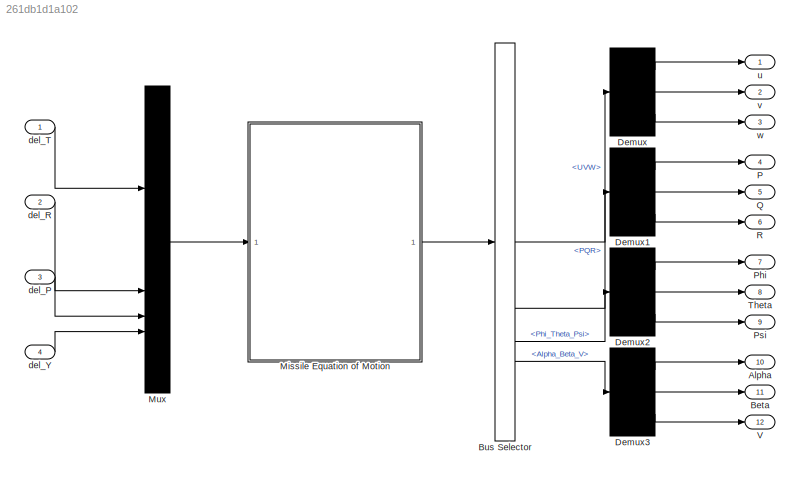
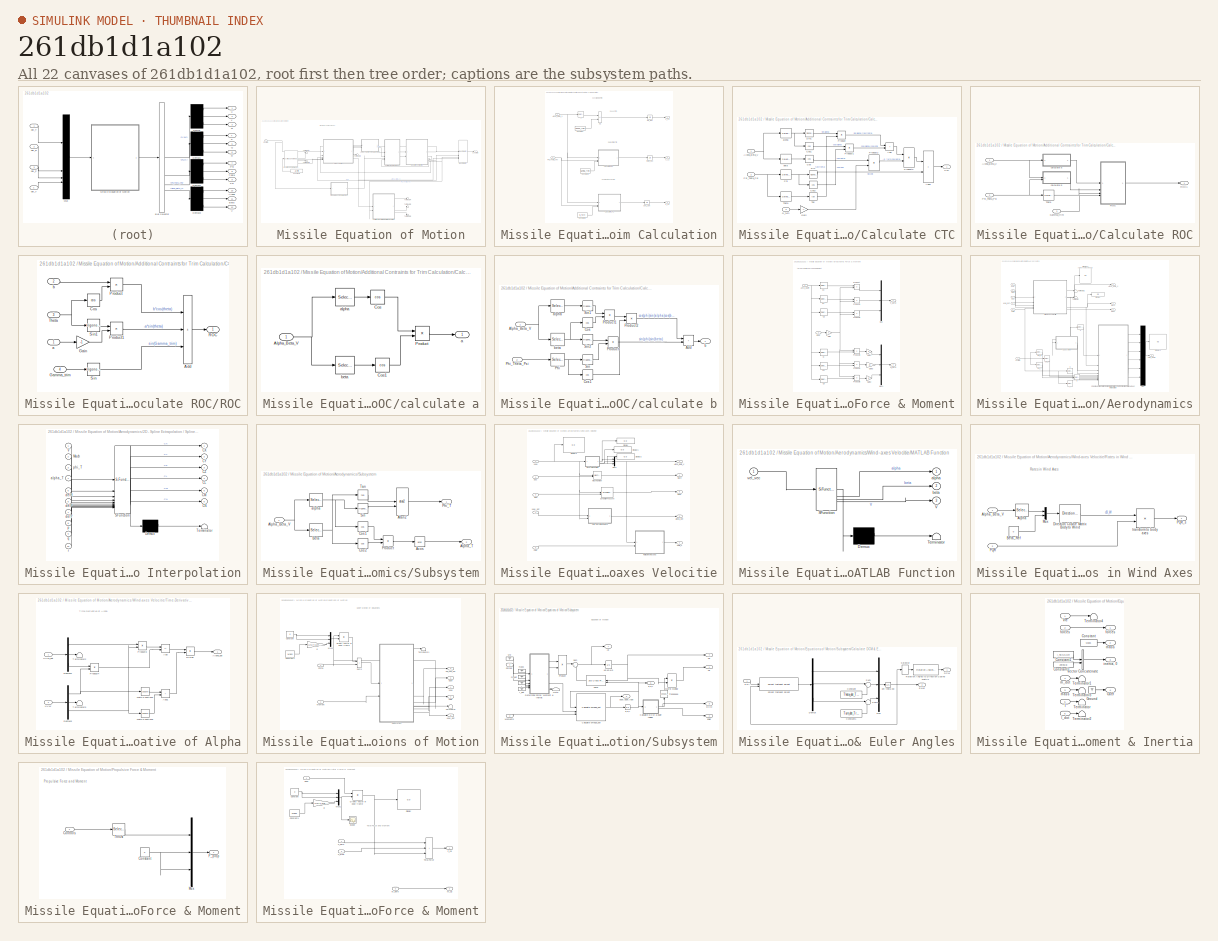
[diagram: thumbnail index - all 22 canvases of the model, root first then tree order]
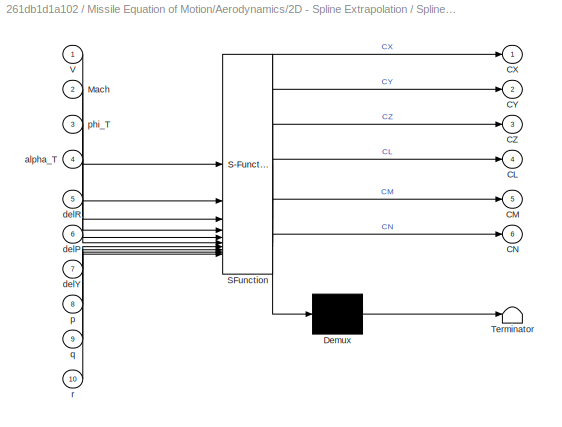
MODEL slx_261db1d1a102
KIND model
CONFIG AbsTol = auto
CONFIG EnableMultiTasking = off
CONFIG FixedStep = auto
CONFIG InitFcn = % clc, clear, close all\nUAV_Data\nSim_Parameters
CONFIG MaxStep = auto
CONFIG MinStep = auto
CONFIG RelTol = 1e-3
CONFIG SampleTimeConstraint = Unconstrained
CONFIG SolverName = VariableStepAuto
CONFIG StartTime = 0.0
CONFIG StopTime = 10.0
BLOCK [Outport] Alpha
  Port = 10
BLOCK [Outport] Beta
  Port = 11
BLOCK [BusSelector] Bus Selector
  OutputSignals = UVW,PQR,Phi_Theta_Psi,Alpha_Beta_V
BLOCK [Demux] Demux
  Outputs = 3
BLOCK [Demux] Demux1
  Outputs = 3
BLOCK [Demux] Demux2
  Outputs = 3
BLOCK [Demux] Demux3
  Outputs = 3
BLOCK [SubSystem] Missile Equation of Motion
BLOCK [SubSystem] Missile Equation of Motion/Additional Contraints for Trim Calculation
BLOCK [Inport] Missile Equation of Motion/Additional Contraints for Trim Calculation/Alpha_Beta_V
  PortDimensions = 3
BLOCK [Integrator] Missile Equation of Motion/Additional Contraints for Trim Calculation/CTC_dot
  InitialCondition = Init_Cnstr3
BLOCK [SubSystem] Missile Equation of Motion/Additional Contraints for Trim Calculation/Calculate CTC
BLOCK [Sum] Missile Equation of Motion/Additional Contraints for Trim Calculation/Calculate CTC/Add
  IconShape = rectangular
BLOCK [Sum] Missile Equation of Motion/Additional Contraints for Trim Calculation/Calculate CTC/Add1
  IconShape = rectangular
BLOCK [Inport] Missile Equation of Motion/Additional Contraints for Trim Calculation/Calculate CTC/Alpha_Beta_V
BLOCK [Outport] Missile Equation of Motion/Additional Contraints for Trim Calculation/Calculate CTC/CTC
BLOCK [Trigonometry] Missile Equation of Motion/Additional Contraints for Trim Calculation/Calculate CTC/Cos
  Operator = cos
BLOCK [Trigonometry] Missile Equation of Motion/Additional Contraints for Trim Calculation/Calculate CTC/Cos1
  Operator = cos
BLOCK [Trigonometry] Missile Equation of Motion/Additional Contraints for Trim Calculation/Calculate CTC/Cos2
  Operator = cos
BLOCK [Inport] Missile Equation of Motion/Additional Contraints for Trim Calculation/Calculate CTC/G_turn
  Port = 3
BLOCK [Gain] Missile Equation of Motion/Additional Contraints for Trim Calculation/Calculate CTC/Gain
  Gain = -1
BLOCK [Selector] Missile Equation of Motion/Additional Contraints for Trim Calculation/Calculate CTC/Phi
  IndexOptions = Index vector (dialog)
  Indices = [1]
  InputPortWidth = 3
  OutputSizes = 1
BLOCK [Inport] Missile Equation of Motion/Additional Contraints for Trim Calculation/Calculate CTC/Phi_Theta_Psi
  Port = 2
BLOCK [Product] Missile Equation of Motion/Additional Contraints for Trim Calculation/Calculate CTC/Product
BLOCK [Product] Missile Equation of Motion/Additional Contraints for Trim Calculation/Calculate CTC/Product1
BLOCK [Product] Missile Equation of Motion/Additional Contraints for Trim Calculation/Calculate CTC/Product2
BLOCK [Product] Missile Equation of Motion/Additional Contraints for Trim Calculation/Calculate CTC/Product3
BLOCK [Trigonometry] Missile Equation of Motion/Additional Contraints for Trim Calculation/Calculate CTC/Sin
BLOCK [Trigonometry] Missile Equation of Motion/Additional Contraints for Trim Calculation/Calculate CTC/Sin1
BLOCK [Trigonometry] Missile Equation of Motion/Additional Contraints for Trim Calculation/Calculate CTC/Tan
  Operator = tan
BLOCK [Selector] Missile Equation of Motion/Additional Contraints for Trim Calculation/Calculate CTC/Theta
  IndexOptions = Index vector (dialog)
  Indices = [2]
  InputPortWidth = 3
  OutputSizes = 1
BLOCK [Selector] Missile Equation of Motion/Additional Contraints for Trim Calculation/Calculate CTC/alpha
  IndexOptions = Index vector (dialog)
  Indices = [1]
  InputPortWidth = 3
  OutputSizes = 1
BLOCK [Selector] Missile Equation of Motion/Additional Contraints for Trim Calculation/Calculate CTC/beta
  IndexOptions = Index vector (dialog)
  Indices = [2]
  InputPortWidth = 3
  OutputSizes = 1
BLOCK [SubSystem] Missile Equation of Motion/Additional Contraints for Trim Calculation/Calculate ROC
BLOCK [Inport] Missile Equation of Motion/Additional Contraints for Trim Calculation/Calculate ROC/Alpha_Beta_V
BLOCK [Inport] Missile Equation of Motion/Additional Contraints for Trim Calculation/Calculate ROC/Gamma_trim
  Port = 3
BLOCK [Inport] Missile Equation of Motion/Additional Contraints for Trim Calculation/Calculate ROC/Phi_Theta_Psi
  Port = 2
BLOCK [SubSystem] Missile Equation of Motion/Additional Contraints for Trim Calculation/Calculate ROC/ROC
BLOCK [Sum] Missile Equation of Motion/Additional Contraints for Trim Calculation/Calculate ROC/ROC/Add
  IconShape = rectangular
  Inputs = +++
BLOCK [Trigonometry] Missile Equation of Motion/Additional Contraints for Trim Calculation/Calculate ROC/ROC/Cos
  Operator = cos
BLOCK [Gain] Missile Equation of Motion/Additional Contraints for Trim Calculation/Calculate ROC/ROC/Gain
  Gain = -1
BLOCK [Inport] Missile Equation of Motion/Additional Contraints for Trim Calculation/Calculate ROC/ROC/Gamma_trim
  Port = 4
BLOCK [Product] Missile Equation of Motion/Additional Contraints for Trim Calculation/Calculate ROC/ROC/Product
BLOCK [Product] Missile Equation of Motion/Additional Contraints for Trim Calculation/Calculate ROC/ROC/Product1
BLOCK [Outport] Missile Equation of Motion/Additional Contraints for Trim Calculation/Calculate ROC/ROC/ROC
BLOCK [Trigonometry] Missile Equation of Motion/Additional Contraints for Trim Calculation/Calculate ROC/ROC/Sin
BLOCK [Trigonometry] Missile Equation of Motion/Additional Contraints for Trim Calculation/Calculate ROC/ROC/Sin1
BLOCK [Inport] Missile Equation of Motion/Additional Contraints for Trim Calculation/Calculate ROC/ROC/Theta
  Port = 3
BLOCK [Inport] Missile Equation of Motion/Additional Contraints for Trim Calculation/Calculate ROC/ROC/a
BLOCK [Inport] Missile Equation of Motion/Additional Contraints for Trim Calculation/Calculate ROC/ROC/b
  Port = 2
BLOCK [Outport] Missile Equation of Motion/Additional Contraints for Trim Calculation/Calculate ROC/ROC1
BLOCK [Selector] Missile Equation of Motion/Additional Contraints for Trim Calculation/Calculate ROC/Theta
  IndexOptions = Index vector (dialog)
  Indices = [2]
  InputPortWidth = 3
  OutputSizes = 1
BLOCK [SubSystem] Missile Equation of Motion/Additional Contraints for Trim Calculation/Calculate ROC/calculate a
BLOCK [Inport] Missile Equation of Motion/Additional Contraints for Trim Calculation/Calculate ROC/calculate a/Alpha_Beta_V
BLOCK [Trigonometry] Missile Equation of Motion/Additional Contraints for Trim Calculation/Calculate ROC/calculate a/Cos
  Operator = cos
BLOCK [Trigonometry] Missile Equation of Motion/Additional Contraints for Trim Calculation/Calculate ROC/calculate a/Cos1
  Operator = cos
BLOCK [Product] Missile Equation of Motion/Additional Contraints for Trim Calculation/Calculate ROC/calculate a/Product
BLOCK [Outport] Missile Equation of Motion/Additional Contraints for Trim Calculation/Calculate ROC/calculate a/a
BLOCK [Selector] Missile Equation of Motion/Additional Contraints for Trim Calculation/Calculate ROC/calculate a/alpha
  IndexOptions = Index vector (dialog)
  Indices = [1]
  InputPortWidth = 3
  OutputSizes = 1
BLOCK [Selector] Missile Equation of Motion/Additional Contraints for Trim Calculation/Calculate ROC/calculate a/beta
  IndexOptions = Index vector (dialog)
  Indices = [2]
  InputPortWidth = 3
  OutputSizes = 1
BLOCK [SubSystem] Missile Equation of Motion/Additional Contraints for Trim Calculation/Calculate ROC/calculate b
BLOCK [Sum] Missile Equation of Motion/Additional Contraints for Trim Calculation/Calculate ROC/calculate b/Add
  IconShape = rectangular
BLOCK [Inport] Missile Equation of Motion/Additional Contraints for Trim Calculation/Calculate ROC/calculate b/Alpha_Beta_V
BLOCK [Trigonometry] Missile Equation of Motion/Additional Contraints for Trim Calculation/Calculate ROC/calculate b/Cos
  Operator = cos
BLOCK [Trigonometry] Missile Equation of Motion/Additional Contraints for Trim Calculation/Calculate ROC/calculate b/Cos1
  Operator = cos
BLOCK [Selector] Missile Equation of Motion/Additional Contraints for Trim Calculation/Calculate ROC/calculate b/Phi
  IndexOptions = Index vector (dialog)
  Indices = [1]
  InputPortWidth = 3
  OutputSizes = 1
BLOCK [Inport] Missile Equation of Motion/Additional Contraints for Trim Calculation/Calculate ROC/calculate b/Phi_Theta_Psi
  Port = 2
BLOCK [Product] Missile Equation of Motion/Additional Contraints for Trim Calculation/Calculate ROC/calculate b/Product
BLOCK [Product] Missile Equation of Motion/Additional Contraints for Trim Calculation/Calculate ROC/calculate b/Product1
BLOCK [Product] Missile Equation of Motion/Additional Contraints for Trim Calculation/Calculate ROC/calculate b/Product2
BLOCK [Trigonometry] Missile Equation of Motion/Additional Contraints for Trim Calculation/Calculate ROC/calculate b/Sin
BLOCK [Trigonometry] Missile Equation of Motion/Additional Contraints for Trim Calculation/Calculate ROC/calculate b/Sin1
BLOCK [Trigonometry] Missile Equation of Motion/Additional Contraints for Trim Calculation/Calculate ROC/calculate b/Sin2
BLOCK [Selector] Missile Equation of Motion/Additional Contraints for Trim Calculation/Calculate ROC/calculate b/alpha
  IndexOptions = Index vector (dialog)
  Indices = [1]
  InputPortWidth = 3
  OutputSizes = 1
BLOCK [Outport] Missile Equation of Motion/Additional Contraints for Trim Calculation/Calculate ROC/calculate b/b
BLOCK [Selector] Missile Equation of Motion/Additional Contraints for Trim Calculation/Calculate ROC/calculate b/beta
  IndexOptions = Index vector (dialog)
  Indices = [2]
  InputPortWidth = 3
  OutputSizes = 1
BLOCK [Constant] Missile Equation of Motion/Additional Contraints for Trim Calculation/Constant
  Value = Speed_Trim
BLOCK [Constant] Missile Equation of Motion/Additional Contraints for Trim Calculation/Constant1
  Value = Gamma_Trim
BLOCK [Constant] Missile Equation of Motion/Additional Contraints for Trim Calculation/Constant2
  Value = G_Turn
BLOCK [Inport] Missile Equation of Motion/Additional Contraints for Trim Calculation/Phi_Theta_Psi
  Port = 2
  PortDimensions = 3
BLOCK [Integrator] Missile Equation of Motion/Additional Contraints for Trim Calculation/ROC_dot
  InitialCondition = Init_Cnstr2
BLOCK [Sum] Missile Equation of Motion/Additional Contraints for Trim Calculation/SC
  IconShape = rectangular
  Inputs = +-
BLOCK [Integrator] Missile Equation of Motion/Additional Contraints for Trim Calculation/SC_dot
  InitialCondition = Init_Cnstr1
BLOCK [Selector] Missile Equation of Motion/Additional Contraints for Trim Calculation/V
  IndexOptions = Index vector (dialog)
  Indices = [3]
  InputPortWidth = 3
  OutputSizes = 1
BLOCK [Outport] Missile Equation of Motion/Additional Contraints for Trim Calculation/x_c1
  Port = 3
BLOCK [Outport] Missile Equation of Motion/Additional Contraints for Trim Calculation/x_c2
  Port = 2
BLOCK [Outport] Missile Equation of Motion/Additional Contraints for Trim Calculation/x_c3
BLOCK [SubSystem] Missile Equation of Motion/Aerodynamic Force & Moment
BLOCK [Inport] Missile Equation of Motion/Aerodynamic Force & Moment/Aero_Coeff
BLOCK [Selector] Missile Equation of Motion/Aerodynamic Force & Moment/CX
  IndexOptions = Index vector (dialog)
  Indices = [1]
  InputPortWidth = 6
  OutputSizes = 1
BLOCK [Selector] Missile Equation of Motion/Aerodynamic Force & Moment/CY
  IndexOptions = Index vector (dialog)
  Indices = [2]
  InputPortWidth = 6
  OutputSizes = 1
BLOCK [Selector] Missile Equation of Motion/Aerodynamic Force & Moment/CZ
  IndexOptions = Index vector (dialog)
  Indices = [3]
  InputPortWidth = 6
  OutputSizes = 1
BLOCK [Selector] Missile Equation of Motion/Aerodynamic Force & Moment/Cl
  IndexOptions = Index vector (dialog)
  Indices = [4]
  InputPortWidth = 6
  OutputSizes = 1
BLOCK [Selector] Missile Equation of Motion/Aerodynamic Force & Moment/Cm
  IndexOptions = Index vector (dialog)
  Indices = [5]
  InputPortWidth = 6
  OutputSizes = 1
BLOCK [Selector] Missile Equation of Motion/Aerodynamic Force & Moment/Cn
  IndexOptions = Index vector (dialog)
  Indices = [6]
  InputPortWidth = 6
  OutputSizes = 1
BLOCK [Outport] Missile Equation of Motion/Aerodynamic Force & Moment/F_aero
BLOCK [Gain] Missile Equation of Motion/Aerodynamic Force & Moment/Gain
  Gain = S
BLOCK [Gain] Missile Equation of Motion/Aerodynamic Force & Moment/Gain1
  Gain = D
BLOCK [Gain] Missile Equation of Motion/Aerodynamic Force & Moment/Gain2
  Gain = D
BLOCK [Gain] Missile Equation of Motion/Aerodynamic Force & Moment/Gain3
  Gain = D
BLOCK [Outport] Missile Equation of Motion/Aerodynamic Force & Moment/M_aero
  Port = 2
BLOCK [Mux] Missile Equation of Motion/Aerodynamic Force & Moment/Mux
  DisplayOption = bar
  Inputs = 3
BLOCK [Mux] Missile Equation of Motion/Aerodynamic Force & Moment/Mux1
  DisplayOption = bar
  Inputs = 3
BLOCK [Product] Missile Equation of Motion/Aerodynamic Force & Moment/Product
BLOCK [Product] Missile Equation of Motion/Aerodynamic Force & Moment/Product1
BLOCK [Product] Missile Equation of Motion/Aerodynamic Force & Moment/Product2
BLOCK [Product] Missile Equation of Motion/Aerodynamic Force & Moment/Product3
BLOCK [Product] Missile Equation of Motion/Aerodynamic Force & Moment/Product4
BLOCK [Product] Missile Equation of Motion/Aerodynamic Force & Moment/Product5
BLOCK [Inport] Missile Equation of Motion/Aerodynamic Force & Moment/qbar
  Port = 2
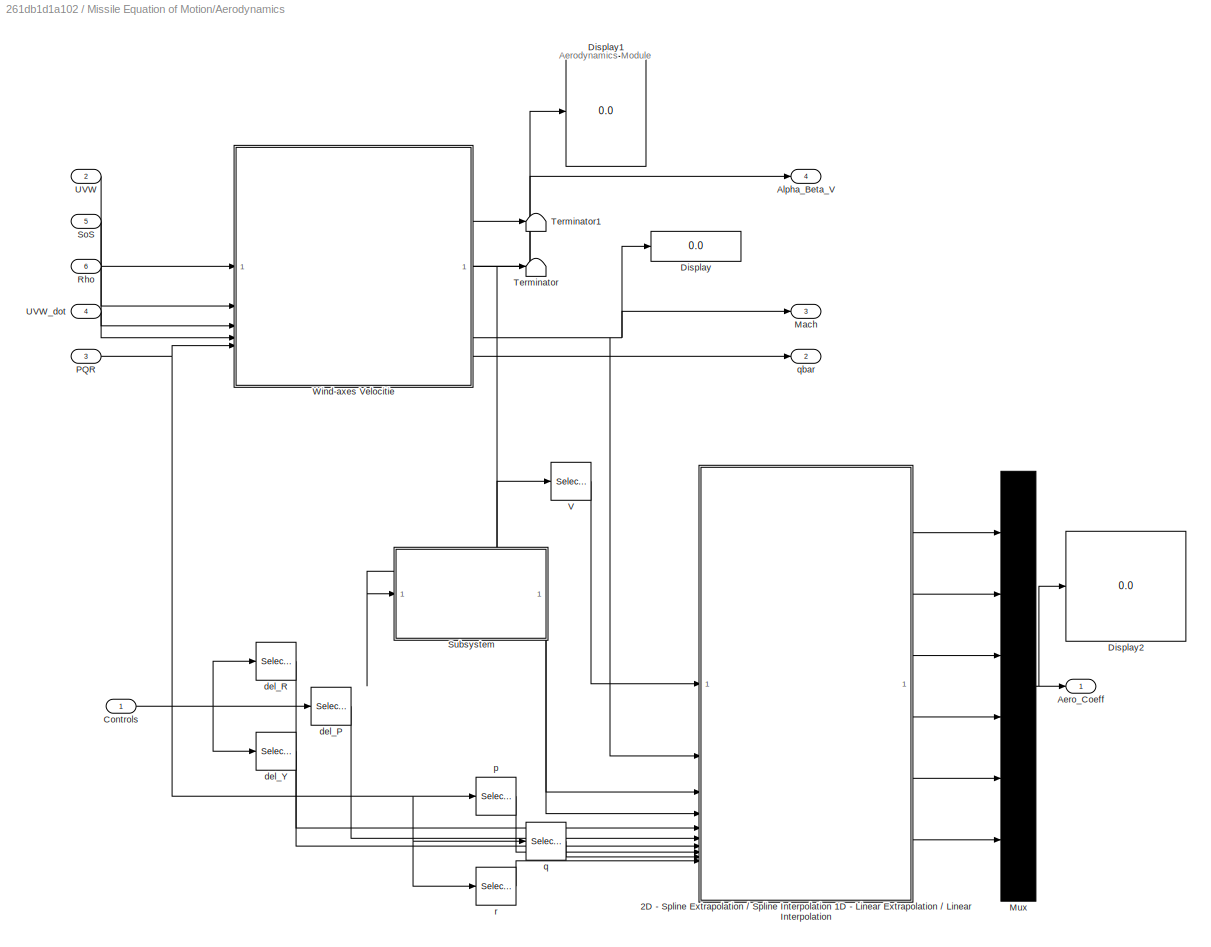
BLOCK [SubSystem] Missile Equation of Motion/Aerodynamics
BLOCK [SubSystem] Missile Equation of Motion/Aerodynamics/2D - Spline Extrapolation // Spline Interpolation 1D - Linear Extrapolation // Linear Interpolation
  ErrorFcn = Stateflow.Translate.translate
  LibrarySourceBlock = simulink/User-Defined\nFunctions/MATLAB Function
  PermitHierarchicalResolution = ExplicitOnly
  SFBlockType = MATLAB Function
  TreatAsAtomicUnit = on
BLOCK [Demux] Missile Equation of Motion/Aerodynamics/2D - Spline Extrapolation // Spline Interpolation 1D - Linear Extrapolation // Linear Interpolation/ Demux 
  Outputs = 1
BLOCK [S-Function] Missile Equation of Motion/Aerodynamics/2D - Spline Extrapolation // Spline Interpolation 1D - Linear Extrapolation // Linear Interpolation/ SFunction 
  EnableBusSupport = on
  FunctionName = sf_sfun
  PortCounts = [10 7]
  SFcnIsStateOwnerBlock = off
  SFunctionDeploymentMode = off
  Tag = Stateflow S-Function 3
BLOCK [Terminator] Missile Equation of Motion/Aerodynamics/2D - Spline Extrapolation // Spline Interpolation 1D - Linear Extrapolation // Linear Interpolation/ Terminator 
BLOCK [Outport] Missile Equation of Motion/Aerodynamics/2D - Spline Extrapolation // Spline Interpolation 1D - Linear Extrapolation // Linear Interpolation/CL
  Port = 4
BLOCK [Outport] Missile Equation of Motion/Aerodynamics/2D - Spline Extrapolation // Spline Interpolation 1D - Linear Extrapolation // Linear Interpolation/CM
  Port = 5
BLOCK [Outport] Missile Equation of Motion/Aerodynamics/2D - Spline Extrapolation // Spline Interpolation 1D - Linear Extrapolation // Linear Interpolation/CN
  Port = 6
BLOCK [Outport] Missile Equation of Motion/Aerodynamics/2D - Spline Extrapolation // Spline Interpolation 1D - Linear Extrapolation // Linear Interpolation/CX
BLOCK [Outport] Missile Equation of Motion/Aerodynamics/2D - Spline Extrapolation // Spline Interpolation 1D - Linear Extrapolation // Linear Interpolation/CY
  Port = 2
BLOCK [Outport] Missile Equation of Motion/Aerodynamics/2D - Spline Extrapolation // Spline Interpolation 1D - Linear Extrapolation // Linear Interpolation/CZ
  Port = 3
BLOCK [Inport] Missile Equation of Motion/Aerodynamics/2D - Spline Extrapolation // Spline Interpolation 1D - Linear Extrapolation // Linear Interpolation/Mach
  Port = 2
BLOCK [Inport] Missile Equation of Motion/Aerodynamics/2D - Spline Extrapolation // Spline Interpolation 1D - Linear Extrapolation // Linear Interpolation/V
BLOCK [Inport] Missile Equation of Motion/Aerodynamics/2D - Spline Extrapolation // Spline Interpolation 1D - Linear Extrapolation // Linear Interpolation/alpha_T
  Port = 4
BLOCK [Inport] Missile Equation of Motion/Aerodynamics/2D - Spline Extrapolation // Spline Interpolation 1D - Linear Extrapolation // Linear Interpolation/delP
  Port = 6
BLOCK [Inport] Missile Equation of Motion/Aerodynamics/2D - Spline Extrapolation // Spline Interpolation 1D - Linear Extrapolation // Linear Interpolation/delR
  Port = 5
BLOCK [Inport] Missile Equation of Motion/Aerodynamics/2D - Spline Extrapolation // Spline Interpolation 1D - Linear Extrapolation // Linear Interpolation/delY
  Port = 7
BLOCK [Inport] Missile Equation of Motion/Aerodynamics/2D - Spline Extrapolation // Spline Interpolation 1D - Linear Extrapolation // Linear Interpolation/p
  Port = 8
BLOCK [Inport] Missile Equation of Motion/Aerodynamics/2D - Spline Extrapolation // Spline Interpolation 1D - Linear Extrapolation // Linear Interpolation/phi_T
  Port = 3
BLOCK [Inport] Missile Equation of Motion/Aerodynamics/2D - Spline Extrapolation // Spline Interpolation 1D - Linear Extrapolation // Linear Interpolation/q
  Port = 9
BLOCK [Inport] Missile Equation of Motion/Aerodynamics/2D - Spline Extrapolation // Spline Interpolation 1D - Linear Extrapolation // Linear Interpolation/r
  Port = 10
BLOCK [Outport] Missile Equation of Motion/Aerodynamics/Aero_Coeff
BLOCK [Outport] Missile Equation of Motion/Aerodynamics/Alpha_Beta_V
  Port = 4
BLOCK [Inport] Missile Equation of Motion/Aerodynamics/Controls
BLOCK [Display] Missile Equation of Motion/Aerodynamics/Display
  Decimation = 1
BLOCK [Display] Missile Equation of Motion/Aerodynamics/Display1
  Decimation = 1
BLOCK [Display] Missile Equation of Motion/Aerodynamics/Display2
  Decimation = 1
BLOCK [Outport] Missile Equation of Motion/Aerodynamics/Mach
  Port = 3
BLOCK [Mux] Missile Equation of Motion/Aerodynamics/Mux
  DisplayOption = bar
  Inputs = 6
BLOCK [Inport] Missile Equation of Motion/Aerodynamics/PQR
  Port = 3
BLOCK [Inport] Missile Equation of Motion/Aerodynamics/Rho
  Port = 6
BLOCK [Inport] Missile Equation of Motion/Aerodynamics/SoS
  Port = 5
BLOCK [SubSystem] Missile Equation of Motion/Aerodynamics/Subsystem
BLOCK [Trigonometry] Missile Equation of Motion/Aerodynamics/Subsystem/Acos
  Operator = acos
BLOCK [Inport] Missile Equation of Motion/Aerodynamics/Subsystem/Alpha_Beta_V
BLOCK [Outport] Missile Equation of Motion/Aerodynamics/Subsystem/Alpha_T
  Port = 2
BLOCK [Trigonometry] Missile Equation of Motion/Aerodynamics/Subsystem/Atan2
  Operator = atan2
BLOCK [Selector] Missile Equation of Motion/Aerodynamics/Subsystem/Beta
  IndexOptions = Index vector (dialog)
  Indices = [2]
  InputPortWidth = 3
  OutputSizes = 1
BLOCK [Trigonometry] Missile Equation of Motion/Aerodynamics/Subsystem/Cos1
  Operator = cos
BLOCK [Trigonometry] Missile Equation of Motion/Aerodynamics/Subsystem/Cos2
  Operator = cos
BLOCK [Outport] Missile Equation of Motion/Aerodynamics/Subsystem/Phi_T
BLOCK [Product] Missile Equation of Motion/Aerodynamics/Subsystem/Product
BLOCK [Trigonometry] Missile Equation of Motion/Aerodynamics/Subsystem/Sin
BLOCK [Trigonometry] Missile Equation of Motion/Aerodynamics/Subsystem/Tan
  Operator = tan
BLOCK [Selector] Missile Equation of Motion/Aerodynamics/Subsystem/alpha
  IndexOptions = Index vector (dialog)
  Indices = [1]
  InputPortWidth = 3
  OutputSizes = 1
BLOCK [Terminator] Missile Equation of Motion/Aerodynamics/Terminator
BLOCK [Terminator] Missile Equation of Motion/Aerodynamics/Terminator1
BLOCK [Inport] Missile Equation of Motion/Aerodynamics/UVW
  Port = 2
BLOCK [Inport] Missile Equation of Motion/Aerodynamics/UVW_dot 
  Port = 4
BLOCK [Selector] Missile Equation of Motion/Aerodynamics/V
  IndexOptions = Index vector (dialog)
  Indices = [3]
  InputPortWidth = 3
  OutputSizes = 1
BLOCK [SubSystem] Missile Equation of Motion/Aerodynamics/Wind-axes Velocitie
BLOCK [Outport] Missile Equation of Motion/Aerodynamics/Wind-axes Velocitie/Alpha_Beta_V
BLOCK [Display] Missile Equation of Motion/Aerodynamics/Wind-axes Velocitie/Display
  Decimation = 1
BLOCK [Display] Missile Equation of Motion/Aerodynamics/Wind-axes Velocitie/Display1
  Decimation = 1
BLOCK [Display] Missile Equation of Motion/Aerodynamics/Wind-axes Velocitie/Display2
  Decimation = 1
BLOCK [Display] Missile Equation of Motion/Aerodynamics/Wind-axes Velocitie/Display3
  Decimation = 1
BLOCK [Reference] Missile Equation of Motion/Aerodynamics/Wind-axes Velocitie/Dynamic Pressure  REF=aerolibasang/Dynamic Pressure
  SourceBlock = aerolibasang/Dynamic Pressure
  SourceType = Dynamic Pressure
BLOCK [SubSystem] Missile Equation of Motion/Aerodynamics/Wind-axes Velocitie/MATLAB Function
  ErrorFcn = Stateflow.Translate.translate
  LibrarySourceBlock = simulink/User-Defined\nFunctions/MATLAB Function
  PermitHierarchicalResolution = ExplicitOnly
  SFBlockType = MATLAB Function
  TreatAsAtomicUnit = on
BLOCK [Demux] Missile Equation of Motion/Aerodynamics/Wind-axes Velocitie/MATLAB Function/ Demux 
  Outputs = 1
BLOCK [S-Function] Missile Equation of Motion/Aerodynamics/Wind-axes Velocitie/MATLAB Function/ SFunction 
  EnableBusSupport = on
  FunctionName = sf_sfun
  PortCounts = [1 4]
  SFcnIsStateOwnerBlock = off
  SFunctionDeploymentMode = off
  Tag = Stateflow S-Function 1
BLOCK [Terminator] Missile Equation of Motion/Aerodynamics/Wind-axes Velocitie/MATLAB Function/ Terminator 
BLOCK [Outport] Missile Equation of Motion/Aerodynamics/Wind-axes Velocitie/MATLAB Function/V
  Port = 3
BLOCK [Outport] Missile Equation of Motion/Aerodynamics/Wind-axes Velocitie/MATLAB Function/alpha
BLOCK [Outport] Missile Equation of Motion/Aerodynamics/Wind-axes Velocitie/MATLAB Function/beta
  Port = 2
BLOCK [Inport] Missile Equation of Motion/Aerodynamics/Wind-axes Velocitie/MATLAB Function/vel_vec
BLOCK [Outport] Missile Equation of Motion/Aerodynamics/Wind-axes Velocitie/Mach
  Port = 4
BLOCK [Reference] Missile Equation of Motion/Aerodynamics/Wind-axes Velocitie/Mach Number  REF=aerolibasang/Mach Number
  SourceBlock = aerolibasang/Mach Number
  SourceType = Mach Number
BLOCK [Mux] Missile Equation of Motion/Aerodynamics/Wind-axes Velocitie/Mux1
  DisplayOption = bar
  Inputs = 3
BLOCK [Inport] Missile Equation of Motion/Aerodynamics/Wind-axes Velocitie/PQR
  Port = 5
BLOCK [Outport] Missile Equation of Motion/Aerodynamics/Wind-axes Velocitie/PQR_s
  Port = 2
BLOCK [SubSystem] Missile Equation of Motion/Aerodynamics/Wind-axes Velocitie/Rates in Wind Axes
BLOCK [Selector] Missile Equation of Motion/Aerodynamics/Wind-axes Velocitie/Rates in Wind Axes/Alpha
  IndexOptions = Index vector (dialog)
  Indices = [1]
  InputPortWidth = 3
  OutputSizes = 1
BLOCK [Inport] Missile Equation of Motion/Aerodynamics/Wind-axes Velocitie/Rates in Wind Axes/Alpha_Beta_V
BLOCK [Constant] Missile Equation of Motion/Aerodynamics/Wind-axes Velocitie/Rates in Wind Axes/Beta_Ref
  Value = 0
BLOCK [Reference] Missile Equation of Motion/Aerodynamics/Wind-axes Velocitie/Rates in Wind Axes/Direction Cosine Matrix Body to Wind  REF=aerolibtransform2/Direction Cosine Matrix
Body to Wind
  SourceBlock = aerolibtransform2/Direction Cosine Matrix\nBody to Wind
  SourceType = DCM Body to Wind
BLOCK [Mux] Missile Equation of Motion/Aerodynamics/Wind-axes Velocitie/Rates in Wind Axes/Mux
  DisplayOption = bar
  Inputs = 2
BLOCK [Inport] Missile Equation of Motion/Aerodynamics/Wind-axes Velocitie/Rates in Wind Axes/PQR
  Port = 2
BLOCK [Outport] Missile Equation of Motion/Aerodynamics/Wind-axes Velocitie/Rates in Wind Axes/PQR_s
BLOCK [Product] Missile Equation of Motion/Aerodynamics/Wind-axes Velocitie/Rates in Wind Axes/transform to body axes
  InputSameDT = on
  Inputs = **
  Multiplication = Matrix(*)
  OutDataTypeStr = Inherit: Same as first input
  SaturateOnIntegerOverflow = on
BLOCK [Inport] Missile Equation of Motion/Aerodynamics/Wind-axes Velocitie/Rho
  Port = 3
BLOCK [Inport] Missile Equation of Motion/Aerodynamics/Wind-axes Velocitie/SoS
  Port = 2
BLOCK [SubSystem] Missile Equation of Motion/Aerodynamics/Wind-axes Velocitie/Time-Derivative of Alpha
BLOCK [Sum] Missile Equation of Motion/Aerodynamics/Wind-axes Velocitie/Time-Derivative of Alpha/Add
  IconShape = rectangular
  Inputs = -+
BLOCK [Sum] Missile Equation of Motion/Aerodynamics/Wind-axes Velocitie/Time-Derivative of Alpha/Add1
  IconShape = rectangular
BLOCK [Outport] Missile Equation of Motion/Aerodynamics/Wind-axes Velocitie/Time-Derivative of Alpha/Alpha_dot
BLOCK [Demux] Missile Equation of Motion/Aerodynamics/Wind-axes Velocitie/Time-Derivative of Alpha/Demux2
  Outputs = 3
BLOCK [Demux] Missile Equation of Motion/Aerodynamics/Wind-axes Velocitie/Time-Derivative of Alpha/Demux3
  Outputs = 3
BLOCK [Product] Missile Equation of Motion/Aerodynamics/Wind-axes Velocitie/Time-Derivative of Alpha/Divide
  Inputs = */
BLOCK [Math] Missile Equation of Motion/Aerodynamics/Wind-axes Velocitie/Time-Derivative of Alpha/Math Function2
  Operator = square
  SignedPower = on
BLOCK [Math] Missile Equation of Motion/Aerodynamics/Wind-axes Velocitie/Time-Derivative of Alpha/Math Function3
  Operator = square
  SignedPower = on
BLOCK [Product] Missile Equation of Motion/Aerodynamics/Wind-axes Velocitie/Time-Derivative of Alpha/Product3
BLOCK [Product] Missile Equation of Motion/Aerodynamics/Wind-axes Velocitie/Time-Derivative of Alpha/Product4
BLOCK [Terminator] Missile Equation of Motion/Aerodynamics/Wind-axes Velocitie/Time-Derivative of Alpha/Terminator2
BLOCK [Terminator] Missile Equation of Motion/Aerodynamics/Wind-axes Velocitie/Time-Derivative of Alpha/Terminator3
BLOCK [Inport] Missile Equation of Motion/Aerodynamics/Wind-axes Velocitie/Time-Derivative of Alpha/UVW
  Port = 2
BLOCK [Inport] Missile Equation of Motion/Aerodynamics/Wind-axes Velocitie/Time-Derivative of Alpha/UVW_dot
BLOCK [Inport] Missile Equation of Motion/Aerodynamics/Wind-axes Velocitie/UVW
BLOCK [Inport] Missile Equation of Motion/Aerodynamics/Wind-axes Velocitie/UVW_dot
  Port = 4
BLOCK [Outport] Missile Equation of Motion/Aerodynamics/Wind-axes Velocitie/alpha_dot
  Port = 3
BLOCK [Outport] Missile Equation of Motion/Aerodynamics/Wind-axes Velocitie/qbar
  Port = 5
BLOCK [Selector] Missile Equation of Motion/Aerodynamics/del_P
  IndexOptions = Index vector (dialog)
  Indices = [3]
  InputPortWidth = 4
  OutputSizes = 1
BLOCK [Selector] Missile Equation of Motion/Aerodynamics/del_R
  IndexOptions = Index vector (dialog)
  Indices = [2]
  InputPortWidth = 4
  OutputSizes = 1
BLOCK [Selector] Missile Equation of Motion/Aerodynamics/del_Y
  IndexOptions = Index vector (dialog)
  Indices = [4]
  InputPortWidth = 4
  OutputSizes = 1
BLOCK [Selector] Missile Equation of Motion/Aerodynamics/p
  IndexOptions = Index vector (dialog)
  Indices = [1]
  InputPortWidth = 3
  OutputSizes = 1
BLOCK [Selector] Missile Equation of Motion/Aerodynamics/q
  IndexOptions = Index vector (dialog)
  Indices = [2]
  InputPortWidth = 3
  OutputSizes = 1
BLOCK [Outport] Missile Equation of Motion/Aerodynamics/qbar
  Port = 2
BLOCK [Selector] Missile Equation of Motion/Aerodynamics/r
  IndexOptions = Index vector (dialog)
  Indices = [3]
  InputPortWidth = 3
  OutputSizes = 1
BLOCK [BusCreator] Missile Equation of Motion/Bus Creator
  DisplayOption = bar
  InheritFromInputs = on
  Inputs = 4
BLOCK [Constant] Missile Equation of Motion/Constant1
  Value = Alt_Trim
BLOCK [Inport] Missile Equation of Motion/Controls
BLOCK [SubSystem] Missile Equation of Motion/Equations of Motion
BLOCK [Constant] Missile Equation of Motion/Equations of Motion/Constant
  Value = 0
BLOCK [Constant] Missile Equation of Motion/Equations of Motion/Constant1
  Value = Mass
BLOCK [Outport] Missile Equation of Motion/Equations of Motion/DCM
  Port = 5
BLOCK [Inport] Missile Equation of Motion/Equations of Motion/Force
  PortDimensions = 3
BLOCK [Product] Missile Equation of Motion/Equations of Motion/Gravity vector in body frame 
  InputSameDT = on
  Multiplication = Matrix(*)
  OutDataTypeStr = Inherit: Same as first input
  SaturateOnIntegerOverflow = on
BLOCK [Inport] Missile Equation of Motion/Equations of Motion/Moment
  Port = 2
  PortDimensions = 3
BLOCK [Mux] Missile Equation of Motion/Equations of Motion/Mux1
  DisplayOption = bar
  Inputs = 3
BLOCK [Outport] Missile Equation of Motion/Equations of Motion/PQR
  Port = 2
BLOCK [Outport] Missile Equation of Motion/Equations of Motion/Phi_The_Psi
  Port = 3
BLOCK [SubSystem] Missile Equation of Motion/Equations of Motion/Subsystem
BLOCK [Outport] Missile Equation of Motion/Equations of Motion/Subsystem/Ab
  Port = 7
BLOCK [SubSystem] Missile Equation of Motion/Equations of Motion/Subsystem/Calculate DCM & Euler Angles
BLOCK [Constant] Missile Equation of Motion/Equations of Motion/Subsystem/Calculate DCM & Euler Angles/Constant
  Value = Theta_dot_Trim
BLOCK [Constant] Missile Equation of Motion/Equations of Motion/Subsystem/Calculate DCM & Euler Angles/Constant1
  Value = Turn_dot_Trim
BLOCK [Outport] Missile Equation of Motion/Equations of Motion/Subsystem/Calculate DCM & Euler Angles/DCM
BLOCK [Demux] Missile Equation of Motion/Equations of Motion/Subsystem/Calculate DCM & Euler Angles/Demux
  Outputs = 3
BLOCK [Outport] Missile Equation of Motion/Equations of Motion/Subsystem/Calculate DCM & Euler Angles/Euler
  Port = 2
BLOCK [Mux] Missile Equation of Motion/Equations of Motion/Subsystem/Calculate DCM & Euler Angles/Mux
  DisplayOption = bar
  Inputs = 3
BLOCK [Reference] Missile Equation of Motion/Equations of Motion/Subsystem/Calculate DCM & Euler Angles/Rotation Angles to Direction Cosine Matrix  REF=sharedtransform/Rotation Angles to
Direction Cosine Matrix
  AttributesFormatString = Rotation Order: %<rotationOrder>
  LibrarySourceBlock = aerolibtransform2/Rotation Angles to\nDirection Cosine Matrix
  SourceBlock = sharedtransform/Rotation Angles to\nDirection Cosine Matrix
  SourceType = Ang2DCM
BLOCK [Selector] Missile Equation of Motion/Equations of Motion/Subsystem/Calculate DCM & Euler Angles/Selector
  IndexOptions = Index vector (dialog)
  Indices = [3 2 1]
  InputPortWidth = 3
  OutputSizes = 1
BLOCK [Sum] Missile Equation of Motion/Equations of Motion/Subsystem/Calculate DCM & Euler Angles/Sum
  Inputs = |+-
BLOCK [Sum] Missile Equation of Motion/Equations of Motion/Subsystem/Calculate DCM & Euler Angles/Sum1
  Inputs = |+-
BLOCK [Inport] Missile Equation of Motion/Equations of Motion/Subsystem/Calculate DCM & Euler Angles/p q r 
BLOCK [Integrator] Missile Equation of Motion/Equations of Motion/Subsystem/Calculate DCM & Euler Angles/phi theta psi
  InitialCondition = Init_Euler
BLOCK [Reference] Missile Equation of Motion/Equations of Motion/Subsystem/Calculate DCM & Euler Angles/phidot thetadot psidot  REF=shared6dofsys/DCM & Euler Angles (Euler)/phidot  (lib defined in slx_91fbb8bad28b)
thetadot
psidot
  SourceBlock = shared6dofsys/DCM & Euler Angles (Euler)/phidot\nthetadot\npsidot
  SourceType = SubSystem
BLOCK [Reference] Missile Equation of Motion/Equations of Motion/Subsystem/Calculate omega_dot  REF=shared6dofsys/Calculate omega_dot  (lib defined in slx_91fbb8bad28b)
  SourceBlock = shared6dofsys/Calculate omega_dot
BLOCK [Outport] Missile Equation of Motion/Equations of Motion/Subsystem/DCM
  Port = 3
BLOCK [SubSystem] Missile Equation of Motion/Equations of Motion/Subsystem/Determine Force, Moment & Inertia
BLOCK [Constant] Missile Equation of Motion/Equations of Motion/Subsystem/Determine Force, Moment & Inertia/Constant
  OutDataTypeStr = Inherit: Inherit via back propagation
  Value = Mass
BLOCK [Constant] Missile Equation of Motion/Equations of Motion/Subsystem/Determine Force, Moment & Inertia/Constant1
  OutDataTypeStr = Inherit: Inherit via back propagation
  Value = I_TENSOR
BLOCK [Constant] Missile Equation of Motion/Equations of Motion/Subsystem/Determine Force, Moment & Inertia/Constant2
  Value = zeros(3)
BLOCK [Ground] Missile Equation of Motion/Equations of Motion/Subsystem/Determine Force, Moment & Inertia/Ground
BLOCK [Inport] Missile Equation of Motion/Equations of Motion/Subsystem/Determine Force, Moment & Inertia/I
  OutDataTypeStr = double
  Port = 5
BLOCK [Inport] Missile Equation of Motion/Equations of Motion/Subsystem/Determine Force, Moment & Inertia/I_dot
  OutDataTypeStr = double
  Port = 6
BLOCK [Outport] Missile Equation of Motion/Equations of Motion/Subsystem/Determine Force, Moment & Inertia/Out9
  Port = 4
BLOCK [Terminator] Missile Equation of Motion/Equations of Motion/Subsystem/Determine Force, Moment & Inertia/Terminator
BLOCK [Terminator] Missile Equation of Motion/Equations of Motion/Subsystem/Determine Force, Moment & Inertia/Terminator1
BLOCK [Terminator] Missile Equation of Motion/Equations of Motion/Subsystem/Determine Force, Moment & Inertia/Terminator2
BLOCK [Terminator] Missile Equation of Motion/Equations of Motion/Subsystem/Determine Force, Moment & Inertia/Terminator3
BLOCK [Terminator] Missile Equation of Motion/Equations of Motion/Subsystem/Determine Force, Moment & Inertia/Terminator4
BLOCK [Concatenate] Missile Equation of Motion/Equations of Motion/Subsystem/Determine Force, Moment & Inertia/Vector Concatenate
  Mode = Multidimensional array
BLOCK [Inport] Missile Equation of Motion/Equations of Motion/Subsystem/Determine Force, Moment & Inertia/Vre
BLOCK [Inport] Missile Equation of Motion/Equations of Motion/Subsystem/Determine Force, Moment & Inertia/forces
  Port = 2
BLOCK [Outport] Missile Equation of Motion/Equations of Motion/Subsystem/Determine Force, Moment & Inertia/forces 
BLOCK [Outport] Missile Equation of Motion/Equations of Motion/Subsystem/Determine Force, Moment & Inertia/inertia, 0
  Port = 3
BLOCK [Inport] Missile Equation of Motion/Equations of Motion/Subsystem/Determine Force, Moment & Inertia/m_dot
  OutDataTypeStr = double
  Port = 4
BLOCK [Outport] Missile Equation of Motion/Equations of Motion/Subsystem/Determine Force, Moment & Inertia/mass
  Port = 2
BLOCK [Inport] Missile Equation of Motion/Equations of Motion/Subsystem/Determine Force, Moment & Inertia/mass 
  Port = 3
BLOCK [Outport] Missile Equation of Motion/Equations of Motion/Subsystem/Euler
  Port = 2
BLOCK [Inport] Missile Equation of Motion/Equations of Motion/Subsystem/Forces
  PortDimensions = 3
BLOCK [Ground] Missile Equation of Motion/Equations of Motion/Subsystem/I
BLOCK [Ground] Missile Equation of Motion/Equations of Motion/Subsystem/I_dot
BLOCK [Product] Missile Equation of Motion/Equations of Motion/Subsystem/Matrix Multiply
  Multiplication = Matrix(*)
BLOCK [Inport] Missile Equation of Motion/Equations of Motion/Subsystem/Moments
  Port = 2
  PortDimensions = 3
BLOCK [Terminator] Missile Equation of Motion/Equations of Motion/Subsystem/Out9
BLOCK [Product] Missile Equation of Motion/Equations of Motion/Subsystem/Product
  Inputs = */
  OutDataTypeStr = Inherit: Same as first input
  SaturateOnIntegerOverflow = on
BLOCK [Sum] Missile Equation of Motion/Equations of Motion/Subsystem/Sum
  Inputs = |++
  SaturateOnIntegerOverflow = on
BLOCK [Math] Missile Equation of Motion/Equations of Motion/Subsystem/Transpose
  NameLocation = right
  Operator = transpose
  SignedPower = on
BLOCK [Outport] Missile Equation of Motion/Equations of Motion/Subsystem/Vb
  Port = 4
BLOCK [Reference] Missile Equation of Motion/Equations of Motion/Subsystem/Vbxw  REF=sharedutil/3x3 Cross Product
  LibrarySourceBlock = aerolibutil/3x3 Cross Product
  SourceBlock = sharedutil/3x3 Cross Product
  SourceType = CrossProduct
BLOCK [Outport] Missile Equation of Motion/Equations of Motion/Subsystem/Ve
BLOCK [Ground] Missile Equation of Motion/Equations of Motion/Subsystem/Vre
BLOCK [Ground] Missile Equation of Motion/Equations of Motion/Subsystem/m_dot
BLOCK [Ground] Missile Equation of Motion/Equations of Motion/Subsystem/mass
BLOCK [Outport] Missile Equation of Motion/Equations of Motion/Subsystem/p,q,r
  Port = 5
BLOCK [Integrator] Missile Equation of Motion/Equations of Motion/Subsystem/p,q,r 
  InitialCondition = Init_Rate
BLOCK [Outport] Missile Equation of Motion/Equations of Motion/Subsystem/pdot,qdot,rdot
  Port = 6
BLOCK [Integrator] Missile Equation of Motion/Equations of Motion/Subsystem/ub,vb,wb
  InitialCondition = Init_Vel
BLOCK [Sum] Missile Equation of Motion/Equations of Motion/Sum3
  IconShape = rectangular
  InputSameDT = on
  OutDataTypeStr = Inherit: Same as first input
  SaturateOnIntegerOverflow = on
BLOCK [Terminator] Missile Equation of Motion/Equations of Motion/Terminator
BLOCK [Terminator] Missile Equation of Motion/Equations of Motion/Terminator1
BLOCK [Outport] Missile Equation of Motion/Equations of Motion/UVW
BLOCK [Outport] Missile Equation of Motion/Equations of Motion/UVW_dot
  Port = 4
BLOCK [Gain] Missile Equation of Motion/Equations of Motion/g
  Gain = UNIT_GRAV
BLOCK [Reference] Missile Equation of Motion/ISA Atmosphere Model  REF=aerolibatmos2/ISA Atmosphere Model
  SourceBlock = aerolibatmos2/ISA Atmosphere Model
  SourceType = International Standard Atmosphere Model
BLOCK [SubSystem] Missile Equation of Motion/Propulsive Force & Moment
BLOCK [Constant] Missile Equation of Motion/Propulsive Force & Moment/Constant
  Value = 0
BLOCK [Inport] Missile Equation of Motion/Propulsive Force & Moment/Controls
BLOCK [Outport] Missile Equation of Motion/Propulsive Force & Moment/F_prop
BLOCK [Mux] Missile Equation of Motion/Propulsive Force & Moment/Mux
  DisplayOption = bar
  Inputs = 3
BLOCK [Selector] Missile Equation of Motion/Propulsive Force & Moment/Thrust
  IndexOptions = Index vector (dialog)
  Indices = [1]
  InputPortWidth = 4
  OutputSizes = 1
BLOCK [Terminator] Missile Equation of Motion/Terminator
BLOCK [Terminator] Missile Equation of Motion/Terminator1
BLOCK [Terminator] Missile Equation of Motion/Terminator2
BLOCK [Terminator] Missile Equation of Motion/Terminator4
BLOCK [Terminator] Missile Equation of Motion/Terminator5
BLOCK [Terminator] Missile Equation of Motion/Terminator6
BLOCK [SubSystem] Missile Equation of Motion/Total Force & Moment
BLOCK [Constant] Missile Equation of Motion/Total Force & Moment/Constant
  Value = 0
BLOCK [Constant] Missile Equation of Motion/Total Force & Moment/Constant1
  Value = Mass
BLOCK [Inport] Missile Equation of Motion/Total Force & Moment/DCM
  Port = 4
BLOCK [Display] Missile Equation of Motion/Total Force & Moment/Display
  Decimation = 1
BLOCK [Inport] Missile Equation of Motion/Total Force & Moment/F_aero
  PortDimensions = 3
BLOCK [Outport] Missile Equation of Motion/Total Force & Moment/F_cg
BLOCK [Inport] Missile Equation of Motion/Total Force & Moment/F_prop
  Port = 3
  PortDimensions = 3
BLOCK [Product] Missile Equation of Motion/Total Force & Moment/Gravity vector in body frame 
  InputSameDT = on
  Multiplication = Matrix(*)
  OutDataTypeStr = Inherit: Same as first input
  SaturateOnIntegerOverflow = on
BLOCK [Inport] Missile Equation of Motion/Total Force & Moment/M_aero
  Port = 2
  PortDimensions = 3
BLOCK [Outport] Missile Equation of Motion/Total Force & Moment/M_cg
  Port = 2
BLOCK [Mux] Missile Equation of Motion/Total Force & Moment/Mux1
  DisplayOption = bar
  Inputs = 3
BLOCK [Scope] Missile Equation of Motion/Total Force & Moment/Scope
  Floating = off
  NumInputPorts = 1
  ScopeSpecificationString = Simulink.scopes.TimeScopeBlockCfg('CurrentConfiguration', extmgr.ConfigurationSet(extmgr.Configuration('Core','General UI',true),extmgr.Configuration('Core','Source UI',true),extmgr.Configuration('Sources','WiredSimulink',true,'DataLoggingVariableName','ScopeData8'),extmgr.Configuration('Visuals','Time Domain',true,'SerializedDisplays',{struct('MinYLimReal','-36.7875','MaxYLimReal','331.0875','YLa...<+1545ch>
BLOCK [Sum] Missile Equation of Motion/Total Force & Moment/Total Force
  IconShape = rectangular
  InputSameDT = on
  Inputs = +++
  OutDataTypeStr = Inherit: Same as first input
  SaturateOnIntegerOverflow = on
BLOCK [Gain] Missile Equation of Motion/Total Force & Moment/g
  Gain = UNIT_GRAV
BLOCK [Outport] Missile Equation of Motion/UAS State
BLOCK [Mux] Mux
  DisplayOption = bar
BLOCK [Outport] P
  Port = 4
BLOCK [Outport] Phi
  Port = 7
BLOCK [Outport] Psi
  Port = 9
BLOCK [Outport] Q
  Port = 5
BLOCK [Outport] R
  Port = 6
BLOCK [Outport] Theta
  Port = 8
BLOCK [Outport] V
  Port = 12
BLOCK [Inport] del_P
  Port = 3
BLOCK [Inport] del_R
  Port = 2
BLOCK [Inport] del_T
BLOCK [Inport] del_Y
  Port = 4
BLOCK [Outport] u
BLOCK [Outport] v
  Port = 2
BLOCK [Outport] w
  Port = 3
ANNOTATION Missile Equation of Motion: Missile Dynamics Model
ANNOTATION Missile Equation of Motion/Additional Contraints for Trim Calculation: Coordinated Turn Trim
ANNOTATION Missile Equation of Motion/Additional Contraints for Trim Calculation: Rate of Climb Trim
ANNOTATION Missile Equation of Motion/Additional Contraints for Trim Calculation: Speed Trim
ANNOTATION Missile Equation of Motion/Additional Contraints for Trim Calculation: Constraints for Trim
ANNOTATION Missile Equation of Motion/Aerodynamic Force & Moment: Aerodynamics Force and Moment
ANNOTATION Missile Equation of Motion/Aerodynamics: Aerodynamics Module
ANNOTATION Missile Equation of Motion/Aerodynamics/Wind-axes Velocitie/Rates in Wind Axes: Rates in Wind Axes
ANNOTATION Missile Equation of Motion/Aerodynamics/Wind-axes Velocitie/Time-Derivative of Alpha: Time Derivative of Alpha
ANNOTATION Missile Equation of Motion/Equations of Motion: 6DOF Motion of Equations
ANNOTATION Missile Equation of Motion/Equations of Motion/Subsystem: Equation of Motion
ANNOTATION Missile Equation of Motion/Propulsive Force & Moment: Propulsive Force and Moment
ANNOTATION Missile Equation of Motion/Total Force & Moment: Total Force and Moment
LINE Bus Selector:1 -> Demux:1
LINE Bus Selector:2 -> Demux1:1
LINE Bus Selector:3 -> Demux2:1
LINE Bus Selector:4 -> Demux3:1
LINE Demux1:1 -> P:1
LINE Demux1:2 -> Q:1
LINE Demux1:3 -> R:1
LINE Demux2:1 -> Phi:1
LINE Demux2:2 -> Theta:1
LINE Demux2:3 -> Psi:1
LINE Demux3:1 -> Alpha:1
LINE Demux3:2 -> Beta:1
LINE Demux3:3 -> V:1
LINE Demux:1 -> u:1
LINE Demux:2 -> v:1
LINE Demux:3 -> w:1
NET Missile Equation of Motion/Additional Contraints for Trim Calculation/Alpha_Beta_V:1 -> Missile Equation of Motion/Additional Contraints for Trim Calculation/Calculate CTC:1, Missile Equation of Motion/Additional Contraints for Trim Calculation/Calculate ROC:1, Missile Equation of Motion/Additional Contraints for Trim Calculation/V:1
LINE Missile Equation of Motion/Additional Contraints for Trim Calculation/CTC_dot:1 -> Missile Equation of Motion/Additional Contraints for Trim Calculation/x_c1:1
LINE Missile Equation of Motion/Additional Contraints for Trim Calculation/Calculate CTC/Add1:1 -> Missile Equation of Motion/Additional Contraints for Trim Calculation/Calculate CTC/CTC:1
LINE Missile Equation of Motion/Additional Contraints for Trim Calculation/Calculate CTC/Add:1 -> Missile Equation of Motion/Additional Contraints for Trim Calculation/Calculate CTC/Product3:1
NET Missile Equation of Motion/Additional Contraints for Trim Calculation/Calculate CTC/Alpha_Beta_V:1 -> Missile Equation of Motion/Additional Contraints for Trim Calculation/Calculate CTC/alpha:1, Missile Equation of Motion/Additional Contraints for Trim Calculation/Calculate CTC/beta:1
LINE Missile Equation of Motion/Additional Contraints for Trim Calculation/Calculate CTC/Cos1:1 -> Missile Equation of Motion/Additional Contraints for Trim Calculation/Calculate CTC/Product1:1
LINE Missile Equation of Motion/Additional Contraints for Trim Calculation/Calculate CTC/Cos2:1 -> Missile Equation of Motion/Additional Contraints for Trim Calculation/Calculate CTC/Product1:2
LINE Missile Equation of Motion/Additional Contraints for Trim Calculation/Calculate CTC/Cos:1 -> Missile Equation of Motion/Additional Contraints for Trim Calculation/Calculate CTC/Product2:1
LINE Missile Equation of Motion/Additional Contraints for Trim Calculation/Calculate CTC/G_turn:1 -> Missile Equation of Motion/Additional Contraints for Trim Calculation/Calculate CTC/Gain:1
LINE Missile Equation of Motion/Additional Contraints for Trim Calculation/Calculate CTC/Gain:1 -> Missile Equation of Motion/Additional Contraints for Trim Calculation/Calculate CTC/Product2:2
NET Missile Equation of Motion/Additional Contraints for Trim Calculation/Calculate CTC/Phi:1 -> Missile Equation of Motion/Additional Contraints for Trim Calculation/Calculate CTC/Cos2:1, Missile Equation of Motion/Additional Contraints for Trim Calculation/Calculate CTC/Sin:1
NET Missile Equation of Motion/Additional Contraints for Trim Calculation/Calculate CTC/Phi_Theta_Psi:1 -> Missile Equation of Motion/Additional Contraints for Trim Calculation/Calculate CTC/Phi:1, Missile Equation of Motion/Additional Contraints for Trim Calculation/Calculate CTC/Theta:1
LINE Missile Equation of Motion/Additional Contraints for Trim Calculation/Calculate CTC/Product1:1 -> Missile Equation of Motion/Additional Contraints for Trim Calculation/Calculate CTC/Add:2
LINE Missile Equation of Motion/Additional Contraints for Trim Calculation/Calculate CTC/Product2:1 -> Missile Equation of Motion/Additional Contraints for Trim Calculation/Calculate CTC/Product3:2
LINE Missile Equation of Motion/Additional Contraints for Trim Calculation/Calculate CTC/Product3:1 -> Missile Equation of Motion/Additional Contraints for Trim Calculation/Calculate CTC/Add1:1
LINE Missile Equation of Motion/Additional Contraints for Trim Calculation/Calculate CTC/Product:1 -> Missile Equation of Motion/Additional Contraints for Trim Calculation/Calculate CTC/Add:1
LINE Missile Equation of Motion/Additional Contraints for Trim Calculation/Calculate CTC/Sin1:1 -> Missile Equation of Motion/Additional Contraints for Trim Calculation/Calculate CTC/Product:1
LINE Missile Equation of Motion/Additional Contraints for Trim Calculation/Calculate CTC/Sin:1 -> Missile Equation of Motion/Additional Contraints for Trim Calculation/Calculate CTC/Add1:2
LINE Missile Equation of Motion/Additional Contraints for Trim Calculation/Calculate CTC/Tan:1 -> Missile Equation of Motion/Additional Contraints for Trim Calculation/Calculate CTC/Product:2
LINE Missile Equation of Motion/Additional Contraints for Trim Calculation/Calculate CTC/Theta:1 -> Missile Equation of Motion/Additional Contraints for Trim Calculation/Calculate CTC/Tan:1
NET Missile Equation of Motion/Additional Contraints for Trim Calculation/Calculate CTC/alpha:1 -> Missile Equation of Motion/Additional Contraints for Trim Calculation/Calculate CTC/Cos1:1, Missile Equation of Motion/Additional Contraints for Trim Calculation/Calculate CTC/Sin1:1
LINE Missile Equation of Motion/Additional Contraints for Trim Calculation/Calculate CTC/beta:1 -> Missile Equation of Motion/Additional Contraints for Trim Calculation/Calculate CTC/Cos:1
LINE Missile Equation of Motion/Additional Contraints for Trim Calculation/Calculate CTC:1 -> Missile Equation of Motion/Additional Contraints for Trim Calculation/CTC_dot:1
NET Missile Equation of Motion/Additional Contraints for Trim Calculation/Calculate ROC/Alpha_Beta_V:1 -> Missile Equation of Motion/Additional Contraints for Trim Calculation/Calculate ROC/calculate a:1, Missile Equation of Motion/Additional Contraints for Trim Calculation/Calculate ROC/calculate b:1
LINE Missile Equation of Motion/Additional Contraints for Trim Calculation/Calculate ROC/Gamma_trim:1 -> Missile Equation of Motion/Additional Contraints for Trim Calculation/Calculate ROC/ROC:4
NET Missile Equation of Motion/Additional Contraints for Trim Calculation/Calculate ROC/Phi_Theta_Psi:1 -> Missile Equation of Motion/Additional Contraints for Trim Calculation/Calculate ROC/Theta:1, Missile Equation of Motion/Additional Contraints for Trim Calculation/Calculate ROC/calculate b:2
LINE Missile Equation of Motion/Additional Contraints for Trim Calculation/Calculate ROC/ROC/Add:1 -> Missile Equation of Motion/Additional Contraints for Trim Calculation/Calculate ROC/ROC/ROC:1
LINE Missile Equation of Motion/Additional Contraints for Trim Calculation/Calculate ROC/ROC/Cos:1 -> Missile Equation of Motion/Additional Contraints for Trim Calculation/Calculate ROC/ROC/Product:2
LINE Missile Equation of Motion/Additional Contraints for Trim Calculation/Calculate ROC/ROC/Gain:1 -> Missile Equation of Motion/Additional Contraints for Trim Calculation/Calculate ROC/ROC/Product1:2
LINE Missile Equation of Motion/Additional Contraints for Trim Calculation/Calculate ROC/ROC/Gamma_trim:1 -> Missile Equation of Motion/Additional Contraints for Trim Calculation/Calculate ROC/ROC/Sin:1
LINE Missile Equation of Motion/Additional Contraints for Trim Calculation/Calculate ROC/ROC/Product1:1 -> Missile Equation of Motion/Additional Contraints for Trim Calculation/Calculate ROC/ROC/Add:2
LINE Missile Equation of Motion/Additional Contraints for Trim Calculation/Calculate ROC/ROC/Product:1 -> Missile Equation of Motion/Additional Contraints for Trim Calculation/Calculate ROC/ROC/Add:1
LINE Missile Equation of Motion/Additional Contraints for Trim Calculation/Calculate ROC/ROC/Sin1:1 -> Missile Equation of Motion/Additional Contraints for Trim Calculation/Calculate ROC/ROC/Product1:1
LINE Missile Equation of Motion/Additional Contraints for Trim Calculation/Calculate ROC/ROC/Sin:1 -> Missile Equation of Motion/Additional Contraints for Trim Calculation/Calculate ROC/ROC/Add:3
NET Missile Equation of Motion/Additional Contraints for Trim Calculation/Calculate ROC/ROC/Theta:1 -> Missile Equation of Motion/Additional Contraints for Trim Calculation/Calculate ROC/ROC/Cos:1, Missile Equation of Motion/Additional Contraints for Trim Calculation/Calculate ROC/ROC/Sin1:1
LINE Missile Equation of Motion/Additional Contraints for Trim Calculation/Calculate ROC/ROC/a:1 -> Missile Equation of Motion/Additional Contraints for Trim Calculation/Calculate ROC/ROC/Gain:1
LINE Missile Equation of Motion/Additional Contraints for Trim Calculation/Calculate ROC/ROC/b:1 -> Missile Equation of Motion/Additional Contraints for Trim Calculation/Calculate ROC/ROC/Product:1
LINE Missile Equation of Motion/Additional Contraints for Trim Calculation/Calculate ROC/ROC:1 -> Missile Equation of Motion/Additional Contraints for Trim Calculation/Calculate ROC/ROC1:1
LINE Missile Equation of Motion/Additional Contraints for Trim Calculation/Calculate ROC/Theta:1 -> Missile Equation of Motion/Additional Contraints for Trim Calculation/Calculate ROC/ROC:3
NET Missile Equation of Motion/Additional Contraints for Trim Calculation/Calculate ROC/calculate a/Alpha_Beta_V:1 -> Missile Equation of Motion/Additional Contraints for Trim Calculation/Calculate ROC/calculate a/alpha:1, Missile Equation of Motion/Additional Contraints for Trim Calculation/Calculate ROC/calculate a/beta:1
LINE Missile Equation of Motion/Additional Contraints for Trim Calculation/Calculate ROC/calculate a/Cos1:1 -> Missile Equation of Motion/Additional Contraints for Trim Calculation/Calculate ROC/calculate a/Product:2
LINE Missile Equation of Motion/Additional Contraints for Trim Calculation/Calculate ROC/calculate a/Cos:1 -> Missile Equation of Motion/Additional Contraints for Trim Calculation/Calculate ROC/calculate a/Product:1
LINE Missile Equation of Motion/Additional Contraints for Trim Calculation/Calculate ROC/calculate a/Product:1 -> Missile Equation of Motion/Additional Contraints for Trim Calculation/Calculate ROC/calculate a/a:1
LINE Missile Equation of Motion/Additional Contraints for Trim Calculation/Calculate ROC/calculate a/alpha:1 -> Missile Equation of Motion/Additional Contraints for Trim Calculation/Calculate ROC/calculate a/Cos:1
LINE Missile Equation of Motion/Additional Contraints for Trim Calculation/Calculate ROC/calculate a/beta:1 -> Missile Equation of Motion/Additional Contraints for Trim Calculation/Calculate ROC/calculate a/Cos1:1
LINE Missile Equation of Motion/Additional Contraints for Trim Calculation/Calculate ROC/calculate a:1 -> Missile Equation of Motion/Additional Contraints for Trim Calculation/Calculate ROC/ROC:1
LINE Missile Equation of Motion/Additional Contraints for Trim Calculation/Calculate ROC/calculate b/Add:1 -> Missile Equation of Motion/Additional Contraints for Trim Calculation/Calculate ROC/calculate b/b:1
NET Missile Equation of Motion/Additional Contraints for Trim Calculation/Calculate ROC/calculate b/Alpha_Beta_V:1 -> Missile Equation of Motion/Additional Contraints for Trim Calculation/Calculate ROC/calculate b/alpha:1, Missile Equation of Motion/Additional Contraints for Trim Calculation/Calculate ROC/calculate b/beta:1
LINE Missile Equation of Motion/Additional Contraints for Trim Calculation/Calculate ROC/calculate b/Cos1:1 -> Missile Equation of Motion/Additional Contraints for Trim Calculation/Calculate ROC/calculate b/Product2:2
LINE Missile Equation of Motion/Additional Contraints for Trim Calculation/Calculate ROC/calculate b/Cos:1 -> Missile Equation of Motion/Additional Contraints for Trim Calculation/Calculate ROC/calculate b/Product1:2
NET Missile Equation of Motion/Additional Contraints for Trim Calculation/Calculate ROC/calculate b/Phi:1 -> Missile Equation of Motion/Additional Contraints for Trim Calculation/Calculate ROC/calculate b/Cos1:1, Missile Equation of Motion/Additional Contraints for Trim Calculation/Calculate ROC/calculate b/Sin:1
LINE Missile Equation of Motion/Additional Contraints for Trim Calculation/Calculate ROC/calculate b/Phi_Theta_Psi:1 -> Missile Equation of Motion/Additional Contraints for Trim Calculation/Calculate ROC/calculate b/Phi:1
LINE Missile Equation of Motion/Additional Contraints for Trim Calculation/Calculate ROC/calculate b/Product1:1 -> Missile Equation of Motion/Additional Contraints for Trim Calculation/Calculate ROC/calculate b/Product2:1
LINE Missile Equation of Motion/Additional Contraints for Trim Calculation/Calculate ROC/calculate b/Product2:1 -> Missile Equation of Motion/Additional Contraints for Trim Calculation/Calculate ROC/calculate b/Add:1
LINE Missile Equation of Motion/Additional Contraints for Trim Calculation/Calculate ROC/calculate b/Product:1 -> Missile Equation of Motion/Additional Contraints for Trim Calculation/Calculate ROC/calculate b/Add:2
LINE Missile Equation of Motion/Additional Contraints for Trim Calculation/Calculate ROC/calculate b/Sin1:1 -> Missile Equation of Motion/Additional Contraints for Trim Calculation/Calculate ROC/calculate b/Product1:1
LINE Missile Equation of Motion/Additional Contraints for Trim Calculation/Calculate ROC/calculate b/Sin2:1 -> Missile Equation of Motion/Additional Contraints for Trim Calculation/Calculate ROC/calculate b/Product:1
LINE Missile Equation of Motion/Additional Contraints for Trim Calculation/Calculate ROC/calculate b/Sin:1 -> Missile Equation of Motion/Additional Contraints for Trim Calculation/Calculate ROC/calculate b/Product:2
LINE Missile Equation of Motion/Additional Contraints for Trim Calculation/Calculate ROC/calculate b/alpha:1 -> Missile Equation of Motion/Additional Contraints for Trim Calculation/Calculate ROC/calculate b/Sin1:1
NET Missile Equation of Motion/Additional Contraints for Trim Calculation/Calculate ROC/calculate b/beta:1 -> Missile Equation of Motion/Additional Contraints for Trim Calculation/Calculate ROC/calculate b/Cos:1, Missile Equation of Motion/Additional Contraints for Trim Calculation/Calculate ROC/calculate b/Sin2:1
LINE Missile Equation of Motion/Additional Contraints for Trim Calculation/Calculate ROC/calculate b:1 -> Missile Equation of Motion/Additional Contraints for Trim Calculation/Calculate ROC/ROC:2
LINE Missile Equation of Motion/Additional Contraints for Trim Calculation/Calculate ROC:1 -> Missile Equation of Motion/Additional Contraints for Trim Calculation/ROC_dot:1
LINE Missile Equation of Motion/Additional Contraints for Trim Calculation/Constant1:1 -> Missile Equation of Motion/Additional Contraints for Trim Calculation/Calculate ROC:3
LINE Missile Equation of Motion/Additional Contraints for Trim Calculation/Constant2:1 -> Missile Equation of Motion/Additional Contraints for Trim Calculation/Calculate CTC:3
LINE Missile Equation of Motion/Additional Contraints for Trim Calculation/Constant:1 -> Missile Equation of Motion/Additional Contraints for Trim Calculation/SC:2
NET Missile Equation of Motion/Additional Contraints for Trim Calculation/Phi_Theta_Psi:1 -> Missile Equation of Motion/Additional Contraints for Trim Calculation/Calculate CTC:2, Missile Equation of Motion/Additional Contraints for Trim Calculation/Calculate ROC:2
LINE Missile Equation of Motion/Additional Contraints for Trim Calculation/ROC_dot:1 -> Missile Equation of Motion/Additional Contraints for Trim Calculation/x_c2:1
LINE Missile Equation of Motion/Additional Contraints for Trim Calculation/SC:1 -> Missile Equation of Motion/Additional Contraints for Trim Calculation/SC_dot:1
LINE Missile Equation of Motion/Additional Contraints for Trim Calculation/SC_dot:1 -> Missile Equation of Motion/Additional Contraints for Trim Calculation/x_c3:1
LINE Missile Equation of Motion/Additional Contraints for Trim Calculation/V:1 -> Missile Equation of Motion/Additional Contraints for Trim Calculation/SC:1
LINE Missile Equation of Motion/Additional Contraints for Trim Calculation:1 -> Missile Equation of Motion/Terminator4:1
LINE Missile Equation of Motion/Additional Contraints for Trim Calculation:2 -> Missile Equation of Motion/Terminator5:1
LINE Missile Equation of Motion/Additional Contraints for Trim Calculation:3 -> Missile Equation of Motion/Terminator6:1
NET Missile Equation of Motion/Aerodynamic Force & Moment/Aero_Coeff:1 -> Missile Equation of Motion/Aerodynamic Force & Moment/CX:1, Missile Equation of Motion/Aerodynamic Force & Moment/CY:1, Missile Equation of Motion/Aerodynamic Force & Moment/CZ:1, Missile Equation of Motion/Aerodynamic Force & Moment/Cl:1, Missile Equation of Motion/Aerodynamic Force & Moment/Cm:1, Missile Equation of Motion/Aerodynamic Force & Moment/Cn:1
LINE Missile Equation of Motion/Aerodynamic Force & Moment/CX:1 -> Missile Equation of Motion/Aerodynamic Force & Moment/Product:1
LINE Missile Equation of Motion/Aerodynamic Force & Moment/CY:1 -> Missile Equation of Motion/Aerodynamic Force & Moment/Product1:1
LINE Missile Equation of Motion/Aerodynamic Force & Moment/CZ:1 -> Missile Equation of Motion/Aerodynamic Force & Moment/Product2:1
LINE Missile Equation of Motion/Aerodynamic Force & Moment/Cl:1 -> Missile Equation of Motion/Aerodynamic Force & Moment/Product3:2
LINE Missile Equation of Motion/Aerodynamic Force & Moment/Cm:1 -> Missile Equation of Motion/Aerodynamic Force & Moment/Product4:2
LINE Missile Equation of Motion/Aerodynamic Force & Moment/Cn:1 -> Missile Equation of Motion/Aerodynamic Force & Moment/Product5:2
LINE Missile Equation of Motion/Aerodynamic Force & Moment/Gain1:1 -> Missile Equation of Motion/Aerodynamic Force & Moment/Mux1:1
LINE Missile Equation of Motion/Aerodynamic Force & Moment/Gain2:1 -> Missile Equation of Motion/Aerodynamic Force & Moment/Mux1:3
LINE Missile Equation of Motion/Aerodynamic Force & Moment/Gain3:1 -> Missile Equation of Motion/Aerodynamic Force & Moment/Mux1:2
NET Missile Equation of Motion/Aerodynamic Force & Moment/Gain:1 -> Missile Equation of Motion/Aerodynamic Force & Moment/Product1:2, Missile Equation of Motion/Aerodynamic Force & Moment/Product2:2, Missile Equation of Motion/Aerodynamic Force & Moment/Product3:1, Missile Equation of Motion/Aerodynamic Force & Moment/Product4:1, Missile Equation of Motion/Aerodynamic Force & Moment/Product5:1, Missile Equation of Motion/Aerodynamic Force & Moment/Product:2
LINE Missile Equation of Motion/Aerodynamic Force & Moment/Mux1:1 -> Missile Equation of Motion/Aerodynamic Force & Moment/M_aero:1
LINE Missile Equation of Motion/Aerodynamic Force & Moment/Mux:1 -> Missile Equation of Motion/Aerodynamic Force & Moment/F_aero:1
LINE Missile Equation of Motion/Aerodynamic Force & Moment/Product1:1 -> Missile Equation of Motion/Aerodynamic Force & Moment/Mux:2
LINE Missile Equation of Motion/Aerodynamic Force & Moment/Product2:1 -> Missile Equation of Motion/Aerodynamic Force & Moment/Mux:3
LINE Missile Equation of Motion/Aerodynamic Force & Moment/Product3:1 -> Missile Equation of Motion/Aerodynamic Force & Moment/Gain1:1
LINE Missile Equation of Motion/Aerodynamic Force & Moment/Product4:1 -> Missile Equation of Motion/Aerodynamic Force & Moment/Gain3:1
LINE Missile Equation of Motion/Aerodynamic Force & Moment/Product5:1 -> Missile Equation of Motion/Aerodynamic Force & Moment/Gain2:1
LINE Missile Equation of Motion/Aerodynamic Force & Moment/Product:1 -> Missile Equation of Motion/Aerodynamic Force & Moment/Mux:1
LINE Missile Equation of Motion/Aerodynamic Force & Moment/qbar:1 -> Missile Equation of Motion/Aerodynamic Force & Moment/Gain:1
LINE Missile Equation of Motion/Aerodynamic Force & Moment:1 -> Missile Equation of Motion/Total Force & Moment:1
LINE Missile Equation of Motion/Aerodynamic Force & Moment:2 -> Missile Equation of Motion/Total Force & Moment:2
LINE Missile Equation of Motion/Aerodynamics/2D - Spline Extrapolation // Spline Interpolation 1D - Linear Extrapolation // Linear Interpolation:1 -> Missile Equation of Motion/Aerodynamics/Mux:1
LINE Missile Equation of Motion/Aerodynamics/2D - Spline Extrapolation // Spline Interpolation 1D - Linear Extrapolation // Linear Interpolation:2 -> Missile Equation of Motion/Aerodynamics/Mux:2
LINE Missile Equation of Motion/Aerodynamics/2D - Spline Extrapolation // Spline Interpolation 1D - Linear Extrapolation // Linear Interpolation:3 -> Missile Equation of Motion/Aerodynamics/Mux:3
LINE Missile Equation of Motion/Aerodynamics/2D - Spline Extrapolation // Spline Interpolation 1D - Linear Extrapolation // Linear Interpolation:4 -> Missile Equation of Motion/Aerodynamics/Mux:4
LINE Missile Equation of Motion/Aerodynamics/2D - Spline Extrapolation // Spline Interpolation 1D - Linear Extrapolation // Linear Interpolation:5 -> Missile Equation of Motion/Aerodynamics/Mux:5
LINE Missile Equation of Motion/Aerodynamics/2D - Spline Extrapolation // Spline Interpolation 1D - Linear Extrapolation // Linear Interpolation:6 -> Missile Equation of Motion/Aerodynamics/Mux:6
NET Missile Equation of Motion/Aerodynamics/Controls:1 -> Missile Equation of Motion/Aerodynamics/del_P:1, Missile Equation of Motion/Aerodynamics/del_R:1, Missile Equation of Motion/Aerodynamics/del_Y:1
NET Missile Equation of Motion/Aerodynamics/Mux:1 -> Missile Equation of Motion/Aerodynamics/Aero_Coeff:1, Missile Equation of Motion/Aerodynamics/Display2:1
NET Missile Equation of Motion/Aerodynamics/PQR:1 -> Missile Equation of Motion/Aerodynamics/Wind-axes Velocitie:5, Missile Equation of Motion/Aerodynamics/p:1, Missile Equation of Motion/Aerodynamics/q:1, Missile Equation of Motion/Aerodynamics/r:1
LINE Missile Equation of Motion/Aerodynamics/Rho:1 -> Missile Equation of Motion/Aerodynamics/Wind-axes Velocitie:3
LINE Missile Equation of Motion/Aerodynamics/SoS:1 -> Missile Equation of Motion/Aerodynamics/Wind-axes Velocitie:2
LINE Missile Equation of Motion/Aerodynamics/Subsystem/Acos:1 -> Missile Equation of Motion/Aerodynamics/Subsystem/Alpha_T:1
NET Missile Equation of Motion/Aerodynamics/Subsystem/Alpha_Beta_V:1 -> Missile Equation of Motion/Aerodynamics/Subsystem/Beta:1, Missile Equation of Motion/Aerodynamics/Subsystem/alpha:1
LINE Missile Equation of Motion/Aerodynamics/Subsystem/Atan2:1 -> Missile Equation of Motion/Aerodynamics/Subsystem/Phi_T:1
NET Missile Equation of Motion/Aerodynamics/Subsystem/Beta:1 -> Missile Equation of Motion/Aerodynamics/Subsystem/Cos2:1, Missile Equation of Motion/Aerodynamics/Subsystem/Tan:1
LINE Missile Equation of Motion/Aerodynamics/Subsystem/Cos1:1 -> Missile Equation of Motion/Aerodynamics/Subsystem/Product:1
LINE Missile Equation of Motion/Aerodynamics/Subsystem/Cos2:1 -> Missile Equation of Motion/Aerodynamics/Subsystem/Product:2
LINE Missile Equation of Motion/Aerodynamics/Subsystem/Product:1 -> Missile Equation of Motion/Aerodynamics/Subsystem/Acos:1
LINE Missile Equation of Motion/Aerodynamics/Subsystem/Sin:1 -> Missile Equation of Motion/Aerodynamics/Subsystem/Atan2:2
LINE Missile Equation of Motion/Aerodynamics/Subsystem/Tan:1 -> Missile Equation of Motion/Aerodynamics/Subsystem/Atan2:1
NET Missile Equation of Motion/Aerodynamics/Subsystem/alpha:1 -> Missile Equation of Motion/Aerodynamics/Subsystem/Cos1:1, Missile Equation of Motion/Aerodynamics/Subsystem/Sin:1
LINE Missile Equation of Motion/Aerodynamics/Subsystem:1 -> Missile Equation of Motion/Aerodynamics/2D - Spline Extrapolation // Spline Interpolation 1D - Linear Extrapolation // Linear Interpolation:3
LINE Missile Equation of Motion/Aerodynamics/Subsystem:2 -> Missile Equation of Motion/Aerodynamics/2D - Spline Extrapolation // Spline Interpolation 1D - Linear Extrapolation // Linear Interpolation:4
LINE Missile Equation of Motion/Aerodynamics/UVW:1 -> Missile Equation of Motion/Aerodynamics/Wind-axes Velocitie:1
LINE Missile Equation of Motion/Aerodynamics/UVW_dot :1 -> Missile Equation of Motion/Aerodynamics/Wind-axes Velocitie:4
LINE Missile Equation of Motion/Aerodynamics/V:1 -> Missile Equation of Motion/Aerodynamics/2D - Spline Extrapolation // Spline Interpolation 1D - Linear Extrapolation // Linear Interpolation:1
LINE Missile Equation of Motion/Aerodynamics/Wind-axes Velocitie/Dynamic Pressure:1 -> Missile Equation of Motion/Aerodynamics/Wind-axes Velocitie/qbar:1
NET Missile Equation of Motion/Aerodynamics/Wind-axes Velocitie/MATLAB Function:1 -> Missile Equation of Motion/Aerodynamics/Wind-axes Velocitie/Display:1, Missile Equation of Motion/Aerodynamics/Wind-axes Velocitie/Mux1:1
NET Missile Equation of Motion/Aerodynamics/Wind-axes Velocitie/MATLAB Function:2 -> Missile Equation of Motion/Aerodynamics/Wind-axes Velocitie/Display1:1, Missile Equation of Motion/Aerodynamics/Wind-axes Velocitie/Mux1:2
NET Missile Equation of Motion/Aerodynamics/Wind-axes Velocitie/MATLAB Function:3 -> Missile Equation of Motion/Aerodynamics/Wind-axes Velocitie/Display2:1, Missile Equation of Motion/Aerodynamics/Wind-axes Velocitie/Mux1:3
LINE Missile Equation of Motion/Aerodynamics/Wind-axes Velocitie/Mach Number:1 -> Missile Equation of Motion/Aerodynamics/Wind-axes Velocitie/Mach:1
NET Missile Equation of Motion/Aerodynamics/Wind-axes Velocitie/Mux1:1 -> Missile Equation of Motion/Aerodynamics/Wind-axes Velocitie/Alpha_Beta_V:1, Missile Equation of Motion/Aerodynamics/Wind-axes Velocitie/Rates in Wind Axes:1
LINE Missile Equation of Motion/Aerodynamics/Wind-axes Velocitie/PQR:1 -> Missile Equation of Motion/Aerodynamics/Wind-axes Velocitie/Rates in Wind Axes:2
LINE Missile Equation of Motion/Aerodynamics/Wind-axes Velocitie/Rates in Wind Axes/Alpha:1 -> Missile Equation of Motion/Aerodynamics/Wind-axes Velocitie/Rates in Wind Axes/Mux:1
LINE Missile Equation of Motion/Aerodynamics/Wind-axes Velocitie/Rates in Wind Axes/Alpha_Beta_V:1 -> Missile Equation of Motion/Aerodynamics/Wind-axes Velocitie/Rates in Wind Axes/Alpha:1
LINE Missile Equation of Motion/Aerodynamics/Wind-axes Velocitie/Rates in Wind Axes/Beta_Ref:1 -> Missile Equation of Motion/Aerodynamics/Wind-axes Velocitie/Rates in Wind Axes/Mux:2
LINE Missile Equation of Motion/Aerodynamics/Wind-axes Velocitie/Rates in Wind Axes/Direction Cosine Matrix Body to Wind:1 -> Missile Equation of Motion/Aerodynamics/Wind-axes Velocitie/Rates in Wind Axes/transform to body axes:1
LINE Missile Equation of Motion/Aerodynamics/Wind-axes Velocitie/Rates in Wind Axes/Mux:1 -> Missile Equation of Motion/Aerodynamics/Wind-axes Velocitie/Rates in Wind Axes/Direction Cosine Matrix Body to Wind:1
LINE Missile Equation of Motion/Aerodynamics/Wind-axes Velocitie/Rates in Wind Axes/PQR:1 -> Missile Equation of Motion/Aerodynamics/Wind-axes Velocitie/Rates in Wind Axes/transform to body axes:2
LINE Missile Equation of Motion/Aerodynamics/Wind-axes Velocitie/Rates in Wind Axes/transform to body axes:1 -> Missile Equation of Motion/Aerodynamics/Wind-axes Velocitie/Rates in Wind Axes/PQR_s:1
LINE Missile Equation of Motion/Aerodynamics/Wind-axes Velocitie/Rates in Wind Axes:1 -> Missile Equation of Motion/Aerodynamics/Wind-axes Velocitie/PQR_s:1
LINE Missile Equation of Motion/Aerodynamics/Wind-axes Velocitie/Rho:1 -> Missile Equation of Motion/Aerodynamics/Wind-axes Velocitie/Dynamic Pressure:2
LINE Missile Equation of Motion/Aerodynamics/Wind-axes Velocitie/SoS:1 -> Missile Equation of Motion/Aerodynamics/Wind-axes Velocitie/Mach Number:2
LINE Missile Equation of Motion/Aerodynamics/Wind-axes Velocitie/Time-Derivative of Alpha/Add1:1 -> Missile Equation of Motion/Aerodynamics/Wind-axes Velocitie/Time-Derivative of Alpha/Divide:2
LINE Missile Equation of Motion/Aerodynamics/Wind-axes Velocitie/Time-Derivative of Alpha/Add:1 -> Missile Equation of Motion/Aerodynamics/Wind-axes Velocitie/Time-Derivative of Alpha/Divide:1
LINE Missile Equation of Motion/Aerodynamics/Wind-axes Velocitie/Time-Derivative of Alpha/Demux2:1 -> Missile Equation of Motion/Aerodynamics/Wind-axes Velocitie/Time-Derivative of Alpha/Product3:1
LINE Missile Equation of Motion/Aerodynamics/Wind-axes Velocitie/Time-Derivative of Alpha/Demux2:2 -> Missile Equation of Motion/Aerodynamics/Wind-axes Velocitie/Time-Derivative of Alpha/Terminator2:1
LINE Missile Equation of Motion/Aerodynamics/Wind-axes Velocitie/Time-Derivative of Alpha/Demux2:3 -> Missile Equation of Motion/Aerodynamics/Wind-axes Velocitie/Time-Derivative of Alpha/Product4:1
NET Missile Equation of Motion/Aerodynamics/Wind-axes Velocitie/Time-Derivative of Alpha/Demux3:1 -> Missile Equation of Motion/Aerodynamics/Wind-axes Velocitie/Time-Derivative of Alpha/Math Function2:1, Missile Equation of Motion/Aerodynamics/Wind-axes Velocitie/Time-Derivative of Alpha/Product4:2
LINE Missile Equation of Motion/Aerodynamics/Wind-axes Velocitie/Time-Derivative of Alpha/Demux3:2 -> Missile Equation of Motion/Aerodynamics/Wind-axes Velocitie/Time-Derivative of Alpha/Terminator3:1
NET Missile Equation of Motion/Aerodynamics/Wind-axes Velocitie/Time-Derivative of Alpha/Demux3:3 -> Missile Equation of Motion/Aerodynamics/Wind-axes Velocitie/Time-Derivative of Alpha/Math Function3:1, Missile Equation of Motion/Aerodynamics/Wind-axes Velocitie/Time-Derivative of Alpha/Product3:2
LINE Missile Equation of Motion/Aerodynamics/Wind-axes Velocitie/Time-Derivative of Alpha/Divide:1 -> Missile Equation of Motion/Aerodynamics/Wind-axes Velocitie/Time-Derivative of Alpha/Alpha_dot:1
LINE Missile Equation of Motion/Aerodynamics/Wind-axes Velocitie/Time-Derivative of Alpha/Math Function2:1 -> Missile Equation of Motion/Aerodynamics/Wind-axes Velocitie/Time-Derivative of Alpha/Add1:1
LINE Missile Equation of Motion/Aerodynamics/Wind-axes Velocitie/Time-Derivative of Alpha/Math Function3:1 -> Missile Equation of Motion/Aerodynamics/Wind-axes Velocitie/Time-Derivative of Alpha/Add1:2
LINE Missile Equation of Motion/Aerodynamics/Wind-axes Velocitie/Time-Derivative of Alpha/Product3:1 -> Missile Equation of Motion/Aerodynamics/Wind-axes Velocitie/Time-Derivative of Alpha/Add:1
LINE Missile Equation of Motion/Aerodynamics/Wind-axes Velocitie/Time-Derivative of Alpha/Product4:1 -> Missile Equation of Motion/Aerodynamics/Wind-axes Velocitie/Time-Derivative of Alpha/Add:2
LINE Missile Equation of Motion/Aerodynamics/Wind-axes Velocitie/Time-Derivative of Alpha/UVW:1 -> Missile Equation of Motion/Aerodynamics/Wind-axes Velocitie/Time-Derivative of Alpha/Demux3:1
LINE Missile Equation of Motion/Aerodynamics/Wind-axes Velocitie/Time-Derivative of Alpha/UVW_dot:1 -> Missile Equation of Motion/Aerodynamics/Wind-axes Velocitie/Time-Derivative of Alpha/Demux2:1
LINE Missile Equation of Motion/Aerodynamics/Wind-axes Velocitie/Time-Derivative of Alpha:1 -> Missile Equation of Motion/Aerodynamics/Wind-axes Velocitie/alpha_dot:1
NET Missile Equation of Motion/Aerodynamics/Wind-axes Velocitie/UVW:1 -> Missile Equation of Motion/Aerodynamics/Wind-axes Velocitie/Display3:1, Missile Equation of Motion/Aerodynamics/Wind-axes Velocitie/Dynamic Pressure:1, Missile Equation of Motion/Aerodynamics/Wind-axes Velocitie/MATLAB Function:1, Missile Equation of Motion/Aerodynamics/Wind-axes Velocitie/Mach Number:1, Missile Equation of Motion/Aerodynamics/Wind-axes Velocitie/Time-Derivative of Alpha:2
LINE Missile Equation of Motion/Aerodynamics/Wind-axes Velocitie/UVW_dot:1 -> Missile Equation of Motion/Aerodynamics/Wind-axes Velocitie/Time-Derivative of Alpha:1
NET Missile Equation of Motion/Aerodynamics/Wind-axes Velocitie:1 -> Missile Equation of Motion/Aerodynamics/Alpha_Beta_V:1, Missile Equation of Motion/Aerodynamics/Display1:1, Missile Equation of Motion/Aerodynamics/Subsystem:1, Missile Equation of Motion/Aerodynamics/V:1
LINE Missile Equation of Motion/Aerodynamics/Wind-axes Velocitie:2 -> Missile Equation of Motion/Aerodynamics/Terminator1:1
LINE Missile Equation of Motion/Aerodynamics/Wind-axes Velocitie:3 -> Missile Equation of Motion/Aerodynamics/Terminator:1
NET Missile Equation of Motion/Aerodynamics/Wind-axes Velocitie:4 -> Missile Equation of Motion/Aerodynamics/2D - Spline Extrapolation // Spline Interpolation 1D - Linear Extrapolation // Linear Interpolation:2, Missile Equation of Motion/Aerodynamics/Display:1, Missile Equation of Motion/Aerodynamics/Mach:1
LINE Missile Equation of Motion/Aerodynamics/Wind-axes Velocitie:5 -> Missile Equation of Motion/Aerodynamics/qbar:1
LINE Missile Equation of Motion/Aerodynamics/del_P:1 -> Missile Equation of Motion/Aerodynamics/2D - Spline Extrapolation // Spline Interpolation 1D - Linear Extrapolation // Linear Interpolation:6
LINE Missile Equation of Motion/Aerodynamics/del_R:1 -> Missile Equation of Motion/Aerodynamics/2D - Spline Extrapolation // Spline Interpolation 1D - Linear Extrapolation // Linear Interpolation:5
LINE Missile Equation of Motion/Aerodynamics/del_Y:1 -> Missile Equation of Motion/Aerodynamics/2D - Spline Extrapolation // Spline Interpolation 1D - Linear Extrapolation // Linear Interpolation:7
LINE Missile Equation of Motion/Aerodynamics/p:1 -> Missile Equation of Motion/Aerodynamics/2D - Spline Extrapolation // Spline Interpolation 1D - Linear Extrapolation // Linear Interpolation:8
LINE Missile Equation of Motion/Aerodynamics/q:1 -> Missile Equation of Motion/Aerodynamics/2D - Spline Extrapolation // Spline Interpolation 1D - Linear Extrapolation // Linear Interpolation:9
LINE Missile Equation of Motion/Aerodynamics/r:1 -> Missile Equation of Motion/Aerodynamics/2D - Spline Extrapolation // Spline Interpolation 1D - Linear Extrapolation // Linear Interpolation:10
LINE Missile Equation of Motion/Aerodynamics:1 -> Missile Equation of Motion/Aerodynamic Force & Moment:1
LINE Missile Equation of Motion/Aerodynamics:2 -> Missile Equation of Motion/Aerodynamic Force & Moment:2
LINE Missile Equation of Motion/Aerodynamics:3 -> Missile Equation of Motion/Terminator2:1
NET Missile Equation of Motion/Aerodynamics:4 -> Missile Equation of Motion/Additional Contraints for Trim Calculation:1, Missile Equation of Motion/Bus Creator:4
LINE Missile Equation of Motion/Bus Creator:1 -> Missile Equation of Motion/UAS State:1
LINE Missile Equation of Motion/Constant1:1 -> Missile Equation of Motion/ISA Atmosphere Model:1
NET Missile Equation of Motion/Controls:1 -> Missile Equation of Motion/Aerodynamics:1, Missile Equation of Motion/Propulsive Force & Moment:1
LINE Missile Equation of Motion/Equations of Motion/Constant1:1 -> Missile Equation of Motion/Equations of Motion/g:1
NET Missile Equation of Motion/Equations of Motion/Constant:1 -> Missile Equation of Motion/Equations of Motion/Mux1:1, Missile Equation of Motion/Equations of Motion/Mux1:2
LINE Missile Equation of Motion/Equations of Motion/Force:1 -> Missile Equation of Motion/Equations of Motion/Sum3:2
LINE Missile Equation of Motion/Equations of Motion/Gravity vector in body frame :1 -> Missile Equation of Motion/Equations of Motion/Sum3:1
LINE Missile Equation of Motion/Equations of Motion/Moment:1 -> Missile Equation of Motion/Equations of Motion/Subsystem:2
LINE Missile Equation of Motion/Equations of Motion/Mux1:1 -> Missile Equation of Motion/Equations of Motion/Gravity vector in body frame :2
LINE Missile Equation of Motion/Equations of Motion/Subsystem/Calculate DCM & Euler Angles/Constant1:1 -> Missile Equation of Motion/Equations of Motion/Subsystem/Calculate DCM & Euler Angles/Sum1:2
LINE Missile Equation of Motion/Equations of Motion/Subsystem/Calculate DCM & Euler Angles/Constant:1 -> Missile Equation of Motion/Equations of Motion/Subsystem/Calculate DCM & Euler Angles/Sum:2
LINE Missile Equation of Motion/Equations of Motion/Subsystem/Calculate DCM & Euler Angles/Demux:1 -> Missile Equation of Motion/Equations of Motion/Subsystem/Calculate DCM & Euler Angles/Mux:1
LINE Missile Equation of Motion/Equations of Motion/Subsystem/Calculate DCM & Euler Angles/Demux:2 -> Missile Equation of Motion/Equations of Motion/Subsystem/Calculate DCM & Euler Angles/Sum:1
LINE Missile Equation of Motion/Equations of Motion/Subsystem/Calculate DCM & Euler Angles/Demux:3 -> Missile Equation of Motion/Equations of Motion/Subsystem/Calculate DCM & Euler Angles/Sum1:1
LINE Missile Equation of Motion/Equations of Motion/Subsystem/Calculate DCM & Euler Angles/Mux:1 -> Missile Equation of Motion/Equations of Motion/Subsystem/Calculate DCM & Euler Angles/phi theta psi:1
LINE Missile Equation of Motion/Equations of Motion/Subsystem/Calculate DCM & Euler Angles/Rotation Angles to Direction Cosine Matrix:1 -> Missile Equation of Motion/Equations of Motion/Subsystem/Calculate DCM & Euler Angles/DCM:1
LINE Missile Equation of Motion/Equations of Motion/Subsystem/Calculate DCM & Euler Angles/Selector:1 -> Missile Equation of Motion/Equations of Motion/Subsystem/Calculate DCM & Euler Angles/Rotation Angles to Direction Cosine Matrix:1
LINE Missile Equation of Motion/Equations of Motion/Subsystem/Calculate DCM & Euler Angles/Sum1:1 -> Missile Equation of Motion/Equations of Motion/Subsystem/Calculate DCM & Euler Angles/Mux:3
LINE Missile Equation of Motion/Equations of Motion/Subsystem/Calculate DCM & Euler Angles/Sum:1 -> Missile Equation of Motion/Equations of Motion/Subsystem/Calculate DCM & Euler Angles/Mux:2
LINE Missile Equation of Motion/Equations of Motion/Subsystem/Calculate DCM & Euler Angles/p q r :1 -> Missile Equation of Motion/Equations of Motion/Subsystem/Calculate DCM & Euler Angles/phidot thetadot psidot:1
NET Missile Equation of Motion/Equations of Motion/Subsystem/Calculate DCM & Euler Angles/phi theta psi:1 -> Missile Equation of Motion/Equations of Motion/Subsystem/Calculate DCM & Euler Angles/Euler:1, Missile Equation of Motion/Equations of Motion/Subsystem/Calculate DCM & Euler Angles/Selector:1, Missile Equation of Motion/Equations of Motion/Subsystem/Calculate DCM & Euler Angles/phidot thetadot psidot:2
LINE Missile Equation of Motion/Equations of Motion/Subsystem/Calculate DCM & Euler Angles/phidot thetadot psidot:1 -> Missile Equation of Motion/Equations of Motion/Subsystem/Calculate DCM & Euler Angles/Demux:1
NET Missile Equation of Motion/Equations of Motion/Subsystem/Calculate DCM & Euler Angles:1 -> Missile Equation of Motion/Equations of Motion/Subsystem/DCM:1, Missile Equation of Motion/Equations of Motion/Subsystem/Transpose:1
LINE Missile Equation of Motion/Equations of Motion/Subsystem/Calculate DCM & Euler Angles:2 -> Missile Equation of Motion/Equations of Motion/Subsystem/Euler:1
NET Missile Equation of Motion/Equations of Motion/Subsystem/Calculate omega_dot:1 -> Missile Equation of Motion/Equations of Motion/Subsystem/p,q,r :1, Missile Equation of Motion/Equations of Motion/Subsystem/pdot,qdot,rdot:1
LINE Missile Equation of Motion/Equations of Motion/Subsystem/Determine Force, Moment & Inertia/Constant1:1 -> Missile Equation of Motion/Equations of Motion/Subsystem/Determine Force, Moment & Inertia/Vector Concatenate:1
LINE Missile Equation of Motion/Equations of Motion/Subsystem/Determine Force, Moment & Inertia/Constant2:1 -> Missile Equation of Motion/Equations of Motion/Subsystem/Determine Force, Moment & Inertia/Vector Concatenate:2
LINE Missile Equation of Motion/Equations of Motion/Subsystem/Determine Force, Moment & Inertia/Constant:1 -> Missile Equation of Motion/Equations of Motion/Subsystem/Determine Force, Moment & Inertia/mass:1
LINE Missile Equation of Motion/Equations of Motion/Subsystem/Determine Force, Moment & Inertia/Ground:1 -> Missile Equation of Motion/Equations of Motion/Subsystem/Determine Force, Moment & Inertia/Out9:1
LINE Missile Equation of Motion/Equations of Motion/Subsystem/Determine Force, Moment & Inertia/I:1 -> Missile Equation of Motion/Equations of Motion/Subsystem/Determine Force, Moment & Inertia/Terminator:1
LINE Missile Equation of Motion/Equations of Motion/Subsystem/Determine Force, Moment & Inertia/I_dot:1 -> Missile Equation of Motion/Equations of Motion/Subsystem/Determine Force, Moment & Inertia/Terminator2:1
LINE Missile Equation of Motion/Equations of Motion/Subsystem/Determine Force, Moment & Inertia/Vector Concatenate:1 -> Missile Equation of Motion/Equations of Motion/Subsystem/Determine Force, Moment & Inertia/inertia, 0:1
LINE Missile Equation of Motion/Equations of Motion/Subsystem/Determine Force, Moment & Inertia/Vre:1 -> Missile Equation of Motion/Equations of Motion/Subsystem/Determine Force, Moment & Inertia/Terminator4:1
LINE Missile Equation of Motion/Equations of Motion/Subsystem/Determine Force, Moment & Inertia/forces:1 -> Missile Equation of Motion/Equations of Motion/Subsystem/Determine Force, Moment & Inertia/forces :1
LINE Missile Equation of Motion/Equations of Motion/Subsystem/Determine Force, Moment & Inertia/m_dot:1 -> Missile Equation of Motion/Equations of Motion/Subsystem/Determine Force, Moment & Inertia/Terminator1:1
LINE Missile Equation of Motion/Equations of Motion/Subsystem/Determine Force, Moment & Inertia/mass :1 -> Missile Equation of Motion/Equations of Motion/Subsystem/Determine Force, Moment & Inertia/Terminator3:1
LINE Missile Equation of Motion/Equations of Motion/Subsystem/Determine Force, Moment & Inertia:1 -> Missile Equation of Motion/Equations of Motion/Subsystem/Product:1
LINE Missile Equation of Motion/Equations of Motion/Subsystem/Determine Force, Moment & Inertia:2 -> Missile Equation of Motion/Equations of Motion/Subsystem/Product:2
LINE Missile Equation of Motion/Equations of Motion/Subsystem/Determine Force, Moment & Inertia:3 -> Missile Equation of Motion/Equations of Motion/Subsystem/Calculate omega_dot:2
LINE Missile Equation of Motion/Equations of Motion/Subsystem/Determine Force, Moment & Inertia:4 -> Missile Equation of Motion/Equations of Motion/Subsystem/Out9:1
LINE Missile Equation of Motion/Equations of Motion/Subsystem/Forces:1 -> Missile Equation of Motion/Equations of Motion/Subsystem/Determine Force, Moment & Inertia:2
LINE Missile Equation of Motion/Equations of Motion/Subsystem/I:1 -> Missile Equation of Motion/Equations of Motion/Subsystem/Determine Force, Moment & Inertia:5
LINE Missile Equation of Motion/Equations of Motion/Subsystem/I_dot:1 -> Missile Equation of Motion/Equations of Motion/Subsystem/Determine Force, Moment & Inertia:6
LINE Missile Equation of Motion/Equations of Motion/Subsystem/Matrix Multiply:1 -> Missile Equation of Motion/Equations of Motion/Subsystem/Ve:1
LINE Missile Equation of Motion/Equations of Motion/Subsystem/Moments:1 -> Missile Equation of Motion/Equations of Motion/Subsystem/Calculate omega_dot:3
LINE Missile Equation of Motion/Equations of Motion/Subsystem/Product:1 -> Missile Equation of Motion/Equations of Motion/Subsystem/Sum:1
NET Missile Equation of Motion/Equations of Motion/Subsystem/Sum:1 -> Missile Equation of Motion/Equations of Motion/Subsystem/Ab:1, Missile Equation of Motion/Equations of Motion/Subsystem/ub,vb,wb:1
LINE Missile Equation of Motion/Equations of Motion/Subsystem/Transpose:1 -> Missile Equation of Motion/Equations of Motion/Subsystem/Matrix Multiply:1
LINE Missile Equation of Motion/Equations of Motion/Subsystem/Vbxw:1 -> Missile Equation of Motion/Equations of Motion/Subsystem/Sum:2
LINE Missile Equation of Motion/Equations of Motion/Subsystem/Vre:1 -> Missile Equation of Motion/Equations of Motion/Subsystem/Determine Force, Moment & Inertia:1
LINE Missile Equation of Motion/Equations of Motion/Subsystem/m_dot:1 -> Missile Equation of Motion/Equations of Motion/Subsystem/Determine Force, Moment & Inertia:4
LINE Missile Equation of Motion/Equations of Motion/Subsystem/mass:1 -> Missile Equation of Motion/Equations of Motion/Subsystem/Determine Force, Moment & Inertia:3
NET Missile Equation of Motion/Equations of Motion/Subsystem/p,q,r :1 -> Missile Equation of Motion/Equations of Motion/Subsystem/Calculate DCM & Euler Angles:1, Missile Equation of Motion/Equations of Motion/Subsystem/Calculate omega_dot:1, Missile Equation of Motion/Equations of Motion/Subsystem/Vbxw:2, Missile Equation of Motion/Equations of Motion/Subsystem/p,q,r:1
NET Missile Equation of Motion/Equations of Motion/Subsystem/ub,vb,wb:1 -> Missile Equation of Motion/Equations of Motion/Subsystem/Matrix Multiply:2, Missile Equation of Motion/Equations of Motion/Subsystem/Vb:1, Missile Equation of Motion/Equations of Motion/Subsystem/Vbxw:1
LINE Missile Equation of Motion/Equations of Motion/Subsystem:1 -> Missile Equation of Motion/Equations of Motion/Terminator1:1
LINE Missile Equation of Motion/Equations of Motion/Subsystem:2 -> Missile Equation of Motion/Equations of Motion/Phi_The_Psi:1
NET Missile Equation of Motion/Equations of Motion/Subsystem:3 -> Missile Equation of Motion/Equations of Motion/DCM:1, Missile Equation of Motion/Equations of Motion/Gravity vector in body frame :1
LINE Missile Equation of Motion/Equations of Motion/Subsystem:4 -> Missile Equation of Motion/Equations of Motion/UVW:1
LINE Missile Equation of Motion/Equations of Motion/Subsystem:5 -> Missile Equation of Motion/Equations of Motion/PQR:1
LINE Missile Equation of Motion/Equations of Motion/Subsystem:6 -> Missile Equation of Motion/Equations of Motion/Terminator:1
LINE Missile Equation of Motion/Equations of Motion/Subsystem:7 -> Missile Equation of Motion/Equations of Motion/UVW_dot:1
LINE Missile Equation of Motion/Equations of Motion/Sum3:1 -> Missile Equation of Motion/Equations of Motion/Subsystem:1
LINE Missile Equation of Motion/Equations of Motion/g:1 -> Missile Equation of Motion/Equations of Motion/Mux1:3
NET Missile Equation of Motion/Equations of Motion:1 -> Missile Equation of Motion/Aerodynamics:2, Missile Equation of Motion/Bus Creator:1
NET Missile Equation of Motion/Equations of Motion:2 -> Missile Equation of Motion/Aerodynamics:3, Missile Equation of Motion/Bus Creator:2
NET Missile Equation of Motion/Equations of Motion:3 -> Missile Equation of Motion/Additional Contraints for Trim Calculation:2, Missile Equation of Motion/Bus Creator:3
LINE Missile Equation of Motion/Equations of Motion:4 -> Missile Equation of Motion/Aerodynamics:4
LINE Missile Equation of Motion/Equations of Motion:5 -> Missile Equation of Motion/Total Force & Moment:4
LINE Missile Equation of Motion/ISA Atmosphere Model:1 -> Missile Equation of Motion/Terminator:1
LINE Missile Equation of Motion/ISA Atmosphere Model:2 -> Missile Equation of Motion/Aerodynamics:5
LINE Missile Equation of Motion/ISA Atmosphere Model:3 -> Missile Equation of Motion/Terminator1:1
LINE Missile Equation of Motion/ISA Atmosphere Model:4 -> Missile Equation of Motion/Aerodynamics:6
NET Missile Equation of Motion/Propulsive Force & Moment/Constant:1 -> Missile Equation of Motion/Propulsive Force & Moment/Mux:2, Missile Equation of Motion/Propulsive Force & Moment/Mux:3
LINE Missile Equation of Motion/Propulsive Force & Moment/Controls:1 -> Missile Equation of Motion/Propulsive Force & Moment/Thrust:1
LINE Missile Equation of Motion/Propulsive Force & Moment/Mux:1 -> Missile Equation of Motion/Propulsive Force & Moment/F_prop:1
LINE Missile Equation of Motion/Propulsive Force & Moment/Thrust:1 -> Missile Equation of Motion/Propulsive Force & Moment/Mux:1
LINE Missile Equation of Motion/Propulsive Force & Moment:1 -> Missile Equation of Motion/Total Force & Moment:3
LINE Missile Equation of Motion/Total Force & Moment/Constant1:1 -> Missile Equation of Motion/Total Force & Moment/g:1
NET Missile Equation of Motion/Total Force & Moment/Constant:1 -> Missile Equation of Motion/Total Force & Moment/Mux1:1, Missile Equation of Motion/Total Force & Moment/Mux1:2
LINE Missile Equation of Motion/Total Force & Moment/DCM:1 -> Missile Equation of Motion/Total Force & Moment/Gravity vector in body frame :1
LINE Missile Equation of Motion/Total Force & Moment/F_aero:1 -> Missile Equation of Motion/Total Force & Moment/Total Force:1
LINE Missile Equation of Motion/Total Force & Moment/F_prop:1 -> Missile Equation of Motion/Total Force & Moment/Total Force:2
NET Missile Equation of Motion/Total Force & Moment/Gravity vector in body frame :1 -> Missile Equation of Motion/Total Force & Moment/Display:1, Missile Equation of Motion/Total Force & Moment/Total Force:3
LINE Missile Equation of Motion/Total Force & Moment/M_aero:1 -> Missile Equation of Motion/Total Force & Moment/M_cg:1
NET Missile Equation of Motion/Total Force & Moment/Mux1:1 -> Missile Equation of Motion/Total Force & Moment/Gravity vector in body frame :2, Missile Equation of Motion/Total Force & Moment/Scope:1
LINE Missile Equation of Motion/Total Force & Moment/Total Force:1 -> Missile Equation of Motion/Total Force & Moment/F_cg:1
LINE Missile Equation of Motion/Total Force & Moment/g:1 -> Missile Equation of Motion/Total Force & Moment/Mux1:3
LINE Missile Equation of Motion/Total Force & Moment:1 -> Missile Equation of Motion/Equations of Motion:1
LINE Missile Equation of Motion/Total Force & Moment:2 -> Missile Equation of Motion/Equations of Motion:2
LINE Missile Equation of Motion:1 -> Bus Selector:1
LINE Mux:1 -> Missile Equation of Motion:1
LINE del_P:1 -> Mux:3
LINE del_R:1 -> Mux:2
LINE del_T:1 -> Mux:1
LINE del_Y:1 -> Mux:4
note: NET lines group one-source signal fan-out (src -> all destinations, sorted); 1:1 wires keep LINE
CHART Missile Equation of Motion/Aerodynamics/Wind-axes Velocitie/MATLAB Function states=1 transitions=1
  STATE_LABEL 'eML_blk_kernel()'
  STATE_LABEL 'SCRIPT:\nfunction [alpha, beta, V] = calc_abv(vel_vec)\n\nu = vel_vec(1);\nv = vel_vec(2);\nw = vel_vec(3);\n\nV = norm([u v w]);          % [m/s] UAV total Speed\n% V = sqrt(u^2 + v^2 + w^2);\nalpha = atan2(w,u);          % [rad] angle of attack\n% alpha = atan(w/u);          % [rad] angle of attack\nbeta  = asin(v/V);          % [rad] sideslip angles\n\nend\n\n'
CHART Missile Equation of Motion/Aerodynamics/2D - Spline Extrapolation // Spline Interpolation
1D - Linear Extrapolation // Linear Interpolation states=1 transitions=1
  STATE_LABEL 'eML_blk_kernel()'
  STATE_LABEL "SCRIPT:\nfunction [CX, CY, CZ, CL, CM, CN] = AeroCoef(V, Mach,phi_T, alpha_T, delR, delP, delY, p, q, r)\n\ndat = load('UAV_Data.mat');\ndat.Tbl_ALPHAT = dat.Tbl_ALPHAT;    % convert to rad\n% alpha_T = alpha_T *180/pi;            % convert to degree\n\ndel_eff = (abs(delP) + abs(delY))/2;\n\n\nB2A = rot1(-phi_T);                            % Body-to-Aeroballistics\n\ndelARPY = B2A *[delR; delP; delY];\ndelR_A...<+2182ch>"
CHART  states=0 transitions=0
CHART  states=0 transitions=0
